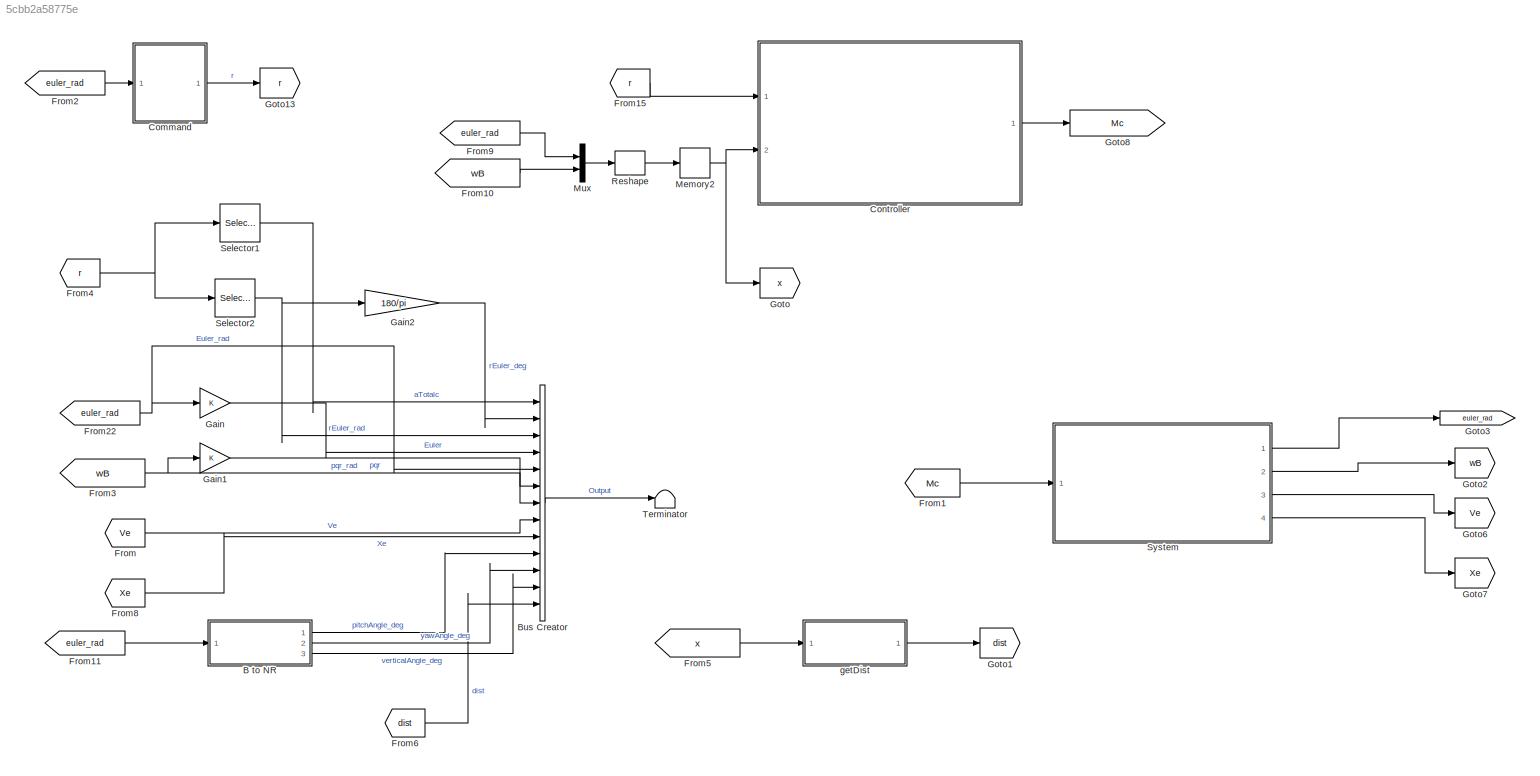
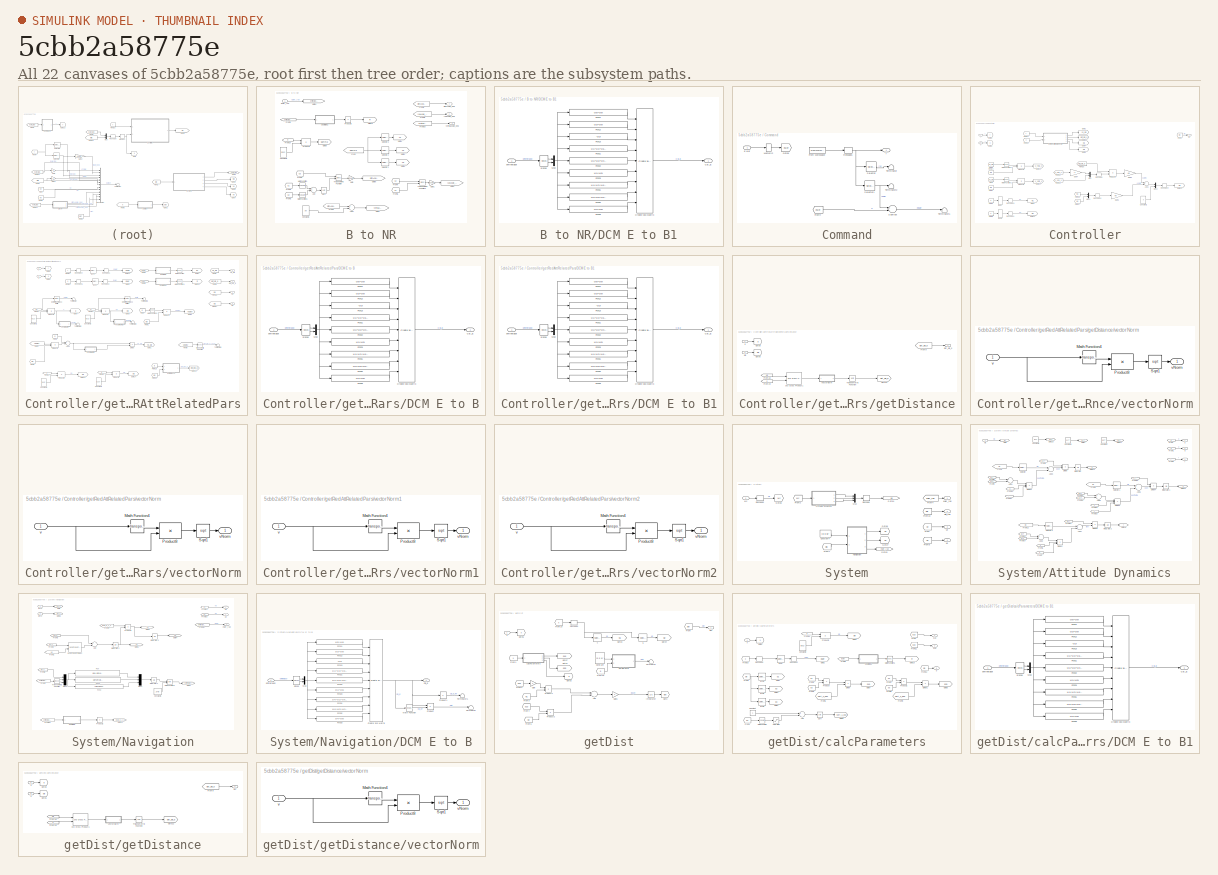
[diagram: thumbnail index - all 22 canvases of the model, root first then tree order]
MODEL slx_5cbb2a58775e
KIND model
BLOCK [SubSystem] B to NR
  Ports = [1, 3]
  RequestExecContextInheritance = off
  TreatAsAtomicUnit = on
BLOCK [Sum] B to NR/Add
  InputSameDT = off
  OutDataTypeStr = Inherit: Inherit via internal rule
  Ports = [2, 1]
  SaturateOnIntegerOverflow = off
BLOCK [Sum] B to NR/Add1
  InputSameDT = off
  Inputs = +-
  OutDataTypeStr = Inherit: Inherit via internal rule
  Ports = [2, 1]
  SaturateOnIntegerOverflow = off
BLOCK [Constant] B to NR/Constant1
  Value = 90
  VectorParams1D = off
BLOCK [Constant] B to NR/Constant2
  Value = [0 0 1]'
  VectorParams1D = off
BLOCK [SubSystem] B to NR/DCM E to B1
  Ports = [1, 1]
  RequestExecContextInheritance = off
BLOCK [Outport] B to NR/DCM E to B1/CB_E
  IconDisplay = Port number
BLOCK [Reference] B to NR/DCM E to B1/Create 3x3 Matrix  REF=aerolibutil/Create 3x3 Matrix
  Ports = [9, 1]
  SourceBlock = aerolibutil/Create 3x3 Matrix
  SourceType = Create 3x3 Matrix
BLOCK [Fcn] B to NR/DCM E to B1/Fcn11
  Expr = u(5)*u(6)
BLOCK [Fcn] B to NR/DCM E to B1/Fcn12
  Expr = u(3)*u(5)
BLOCK [Fcn] B to NR/DCM E to B1/Fcn13
  Expr = -u(2)
BLOCK [Fcn] B to NR/DCM E to B1/Fcn21
  Expr = u(1)*u(2)*u(6)-u(4)*u(3)
BLOCK [Fcn] B to NR/DCM E to B1/Fcn22
  Expr = u(1)*u(2)*u(3)+u(4)*u(6)
BLOCK [Fcn] B to NR/DCM E to B1/Fcn23
  Expr = u(1)*u(5)
BLOCK [Fcn] B to NR/DCM E to B1/Fcn31
  Expr = u(4)*u(2)*u(6)+u(1)*u(3)
BLOCK [Fcn] B to NR/DCM E to B1/Fcn32
  Expr = u(4)*u(2)*u(3)-u(1)*u(6)
BLOCK [Fcn] B to NR/DCM E to B1/Fcn33
  Expr = u(4)*u(5)
BLOCK [Mux] B to NR/DCM E to B1/Mux
  DisplayOption = bar
  Inputs = 2
  Ports = [2, 1]
BLOCK [Inport] B to NR/DCM E to B1/phithetapsi
  IconDisplay = Port number
BLOCK [Trigonometry] B to NR/DCM E to B1/sincos
  Operator = sincos
  Ports = [1, 2]
BLOCK [Inport] B to NR/Euler_rad
  IconDisplay = Port number
BLOCK [From] B to NR/From
  GotoTag = Gamma
BLOCK [From] B to NR/From1
  GotoTag = u3
BLOCK [From] B to NR/From10
  GotoTag = verticalAngle_deg
BLOCK [From] B to NR/From16
  GotoTag = R
BLOCK [From] B to NR/From2
  GotoTag = u1
BLOCK [From] B to NR/From3
  GotoTag = u2
BLOCK [From] B to NR/From4
  GotoTag = pitchAngle_deg
BLOCK [From] B to NR/From5
  GotoTag = phithetapsi
BLOCK [From] B to NR/From6
  GotoTag = u1
BLOCK [From] B to NR/From7
  GotoTag = u2
BLOCK [From] B to NR/From8
  GotoTag = pitchAngle_deg
BLOCK [From] B to NR/From9
  GotoTag = yawAngle_deg
BLOCK [Gain] B to NR/Gain
  Gain = 180/pi
  OutDataTypeStr = Inherit: Inherit via internal rule
  ParamDataTypeStr = Inherit: Inherit via internal rule
  SaturateOnIntegerOverflow = off
BLOCK [Gain] B to NR/Gain1
  Gain = 180/pi
  OutDataTypeStr = Inherit: Inherit via internal rule
  ParamDataTypeStr = Inherit: Inherit via internal rule
  SaturateOnIntegerOverflow = off
BLOCK [Goto] B to NR/Goto1
  GotoTag = u1
BLOCK [Goto] B to NR/Goto10
  GotoTag = R
BLOCK [Goto] B to NR/Goto2
  GotoTag = u2
BLOCK [Goto] B to NR/Goto3
  GotoTag = phithetapsi
BLOCK [Goto] B to NR/Goto4
  GotoTag = u3
BLOCK [Goto] B to NR/Goto5
  GotoTag = pitchAngle_deg
BLOCK [Goto] B to NR/Goto6
  GotoTag = yawAngle_deg
BLOCK [Goto] B to NR/Goto7
  GotoTag = verticalAngle_deg
BLOCK [Goto] B to NR/Goto9
  GotoTag = Gamma
BLOCK [Math] B to NR/Math Function
  Operator = square
  Ports = [1, 1]
BLOCK [Math] B to NR/Math Function1
  Operator = square
  Ports = [1, 1]
BLOCK [Product] B to NR/Product4
  InputSameDT = off
  Multiplication = Matrix(*)
  OutDataTypeStr = Inherit: Inherit via internal rule
  Ports = [2, 1]
  SaturateOnIntegerOverflow = off
BLOCK [Product] B to NR/Product5
  InputSameDT = off
  Inputs = /
  Multiplication = Matrix(*)
  OutDataTypeStr = Inherit: Inherit via internal rule
  Ports = [1, 1]
  SaturateOnIntegerOverflow = off
BLOCK [Selector] B to NR/Selector1
  Indices = 3
  InputPortWidth = 3
  Ports = [1, 1]
BLOCK [Selector] B to NR/Selector2
  Indices = 2
  InputPortWidth = 3
  Ports = [1, 1]
BLOCK [Selector] B to NR/Selector3
  InputPortWidth = 3
  Ports = [1, 1]
BLOCK [Sqrt] B to NR/Sqrt
BLOCK [Trigonometry] B to NR/Trigonometric Function
  Operator = atan2
  Ports = [2, 1]
BLOCK [Trigonometry] B to NR/Trigonometric Function1
  Operator = atan2
  Ports = [2, 1]
BLOCK [Outport] B to NR/pitchAngle_deg
  IconDisplay = Port number
BLOCK [Outport] B to NR/verticalAngle_deg
  IconDisplay = Port number
  Port = 3
BLOCK [Outport] B to NR/yawAngle_deg
  IconDisplay = Port number
  Port = 2
BLOCK [BusCreator] Bus Creator
  DisplayOption = bar
  Inputs = 13
  Ports = [13, 1]
BLOCK [SubSystem] Command
  Ports = [1, 1]
  RequestExecContextInheritance = off
  SystemSampleTime = dtFc
  TreatAsAtomicUnit = on
BLOCK [Inport] Command/Euler
  IconDisplay = Port number
BLOCK [FromWorkspace] Command/From Workspace
  Interpolate = off
  OutputAfterFinalValue = Setting to zero
  VariableName = r
BLOCK [From] Command/From4
  GotoTag = euler
BLOCK [Goto] Command/Goto5
  GotoTag = euler
BLOCK [Memory] Command/Memory2
  InheritSampleTime = on
  LinearizeAsDelay = on
  LinearizeMemory = on
  X0 = euler0
BLOCK [Reshape] Command/Reshape1
  OutputDimensionality = Column vector (2-D)
  Ports = [1, 1]
BLOCK [Selector] Command/Selector
  IndexOptions = Index vector (dialog),Index vector (dialog)
  Indices = 1,1
  InputPortWidth = 2
  NumberOfDimensions = 2
  OutputSizes = 1,1
  Ports = [1, 1]
BLOCK [Selector] Command/Selector1
  IndexOptions = Index vector (dialog),Index vector (dialog)
  Indices = [2 3 4],1
  InputPortWidth = 3
  NumberOfDimensions = 2
  OutputSizes = 1,1
  Ports = [1, 1]
BLOCK [Sum] Command/Subtract
  InputSameDT = off
  Inputs = +-
  OutDataTypeStr = Inherit: Inherit via internal rule
  Ports = [2, 1]
  SaturateOnIntegerOverflow = off
BLOCK [Terminator] Command/Terminator
BLOCK [Terminator] Command/Terminator1
BLOCK [Terminator] Command/Terminator2
BLOCK [Outport] Command/r
  IconDisplay = Port number
  InitialOutput = 0
BLOCK [SubSystem] Controller
  Ports = [2, 1]
  RequestExecContextInheritance = off
  SystemSampleTime = dtFc
  TreatAsAtomicUnit = on
BLOCK [Sum] Controller/Add1
  InputSameDT = off
  Inputs = +-
  OutDataTypeStr = Inherit: Inherit via internal rule
  Ports = [2, 1]
  SaturateOnIntegerOverflow = off
BLOCK [Constant] Controller/Constant1
  Value = 0
  VectorParams1D = off
BLOCK [From] Controller/From
  GotoTag = Yq_pi0
BLOCK [From] Controller/From1
  GotoTag = Mc
BLOCK [From] Controller/From10
  GotoTag = x
BLOCK [From] Controller/From11
  GotoTag = r
BLOCK [From] Controller/From12
  GotoTag = V_Ypi2_V
BLOCK [From] Controller/From13
  GotoTag = V_Ypi1_V
BLOCK [From] Controller/From14
  GotoTag = pi1
BLOCK [From] Controller/From15
  GotoTag = dist_pi0_q
BLOCK [From] Controller/From16
  GotoTag = w1
BLOCK [From] Controller/From17
  GotoTag = w2
BLOCK [From] Controller/From2
  GotoTag = x
BLOCK [From] Controller/From7
  GotoTag = pi2
BLOCK [From] Controller/From8
  GotoTag = x
BLOCK [From] Controller/From9
  GotoTag = Yq_pi0
BLOCK [Gain] Controller/Gain4
  Gain = -1
  Multiplication = Matrix(K*u)
  OutDataTypeStr = Inherit: Inherit via internal rule
  ParamDataTypeStr = Inherit: Inherit via internal rule
  SaturateOnIntegerOverflow = off
BLOCK [Gain] Controller/Gain5
  Gain = Kp
  OutDataTypeStr = Inherit: Inherit via internal rule
  ParamDataTypeStr = Inherit: Inherit via internal rule
  SaturateOnIntegerOverflow = off
BLOCK [Gain] Controller/Gain6
  Gain = Kv
  OutDataTypeStr = Inherit: Inherit via internal rule
  ParamDataTypeStr = Inherit: Inherit via internal rule
  SaturateOnIntegerOverflow = off
BLOCK [Goto] Controller/Goto10
  GotoTag = V_Ypi1_V
BLOCK [Goto] Controller/Goto11
  GotoTag = w2
BLOCK [Goto] Controller/Goto12
  GotoTag = Mc
BLOCK [Goto] Controller/Goto14
  GotoTag = V_Ypi2_V
BLOCK [Goto] Controller/Goto2
  GotoTag = Yq_pi0
BLOCK [Goto] Controller/Goto3
  GotoTag = dist_pi0_q
BLOCK [Goto] Controller/Goto4
  GotoTag = pi1
BLOCK [Goto] Controller/Goto5
  GotoTag = x
BLOCK [Goto] Controller/Goto7
  GotoTag = w1
BLOCK [Goto] Controller/Goto8
  GotoTag = r
BLOCK [Goto] Controller/Goto9
  GotoTag = pi2
BLOCK [Math] Controller/Math Function2
  Operator = transpose
  Ports = [1, 1]
BLOCK [Math] Controller/Math Function3
  Operator = transpose
  Ports = [1, 1]
BLOCK [Outport] Controller/Mc
  IconDisplay = Port number
BLOCK [Mux] Controller/Mux
  DisplayOption = bar
  Inputs = 2
  Ports = [2, 1]
BLOCK [Mux] Controller/Mux1
  DisplayOption = bar
  Inputs = 2
  Ports = [2, 1]
BLOCK [Mux] Controller/Mux2
  DisplayOption = bar
  Inputs = 2
  Ports = [2, 1]
BLOCK [Product] Controller/Product2
  InputSameDT = off
  Multiplication = Matrix(*)
  OutDataTypeStr = Inherit: Inherit via internal rule
  Ports = [2, 1]
  SaturateOnIntegerOverflow = off
BLOCK [Product] Controller/Product3
  InputSameDT = off
  Multiplication = Matrix(*)
  OutDataTypeStr = Inherit: Inherit via internal rule
  Ports = [2, 1]
  SaturateOnIntegerOverflow = off
BLOCK [Product] Controller/Product4
  InputSameDT = off
  OutDataTypeStr = Inherit: Inherit via internal rule
  Ports = [2, 1]
  SaturateOnIntegerOverflow = off
BLOCK [Reshape] Controller/Reshape
  OutputDimensionality = Column vector (2-D)
  Ports = [1, 1]
BLOCK [Reshape] Controller/Reshape1
  OutputDimensionality = Column vector (2-D)
  Ports = [1, 1]
BLOCK [Reshape] Controller/Reshape2
  OutputDimensionality = Column vector (2-D)
  Ports = [1, 1]
BLOCK [Reshape] Controller/Reshape3
  OutputDimensionality = Column vector (2-D)
  Ports = [1, 1]
BLOCK [Reshape] Controller/Reshape4
  OutputDimensionality = Column vector (2-D)
  Ports = [1, 1]
BLOCK [Selector] Controller/[4 5 6]
  Indices = 4
  InputPortWidth = 6
  Ports = [1, 1]
BLOCK [Selector] Controller/[4 5 6]1
  Indices = 5
  InputPortWidth = 6
  Ports = [1, 1]
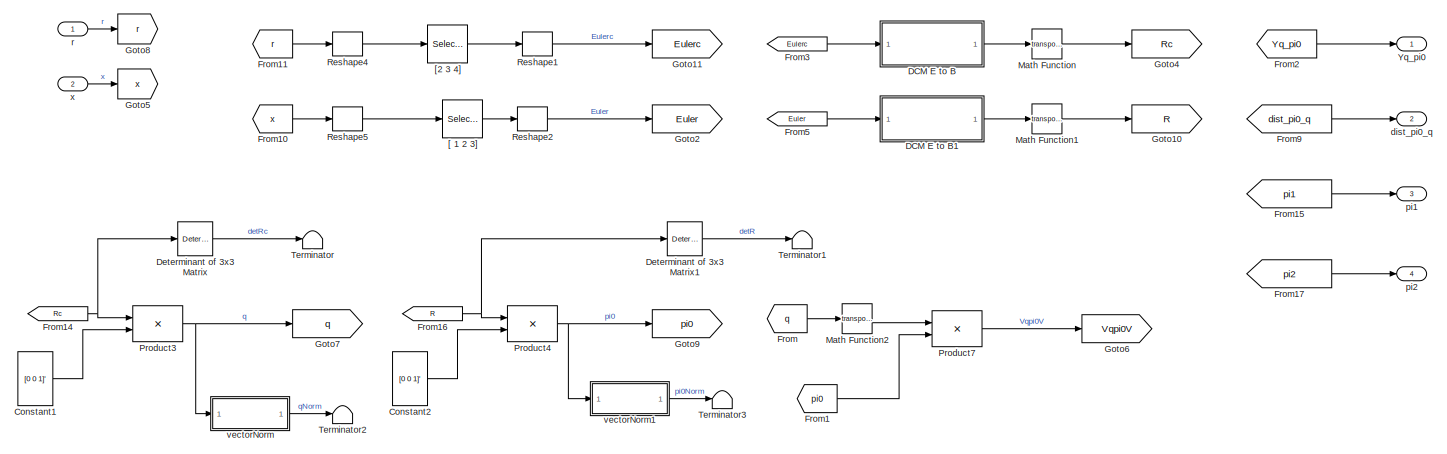
[diagram: Controller/getRedAttRelatedPars - part 1/2, full width, top band]
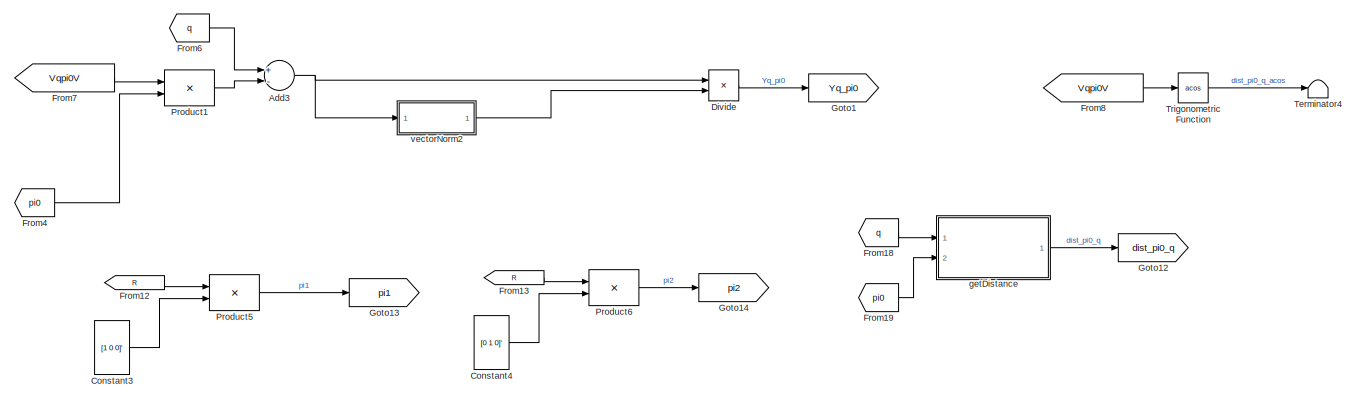
[diagram: Controller/getRedAttRelatedPars - part 2/2, full width, bottom band]
BLOCK [SubSystem] Controller/getRedAttRelatedPars
  Ports = [2, 4]
  RequestExecContextInheritance = off
BLOCK [Sum] Controller/getRedAttRelatedPars/Add3
  InputSameDT = off
  Inputs = +-
  OutDataTypeStr = Inherit: Inherit via internal rule
  Ports = [2, 1]
  SaturateOnIntegerOverflow = off
BLOCK [Constant] Controller/getRedAttRelatedPars/Constant1
  Value = [0 0 1]'
  VectorParams1D = off
BLOCK [Constant] Controller/getRedAttRelatedPars/Constant2
  Value = [0 0 1]'
  VectorParams1D = off
BLOCK [Constant] Controller/getRedAttRelatedPars/Constant3
  Value = [1 0 0]'
  VectorParams1D = off
BLOCK [Constant] Controller/getRedAttRelatedPars/Constant4
  Value = [0 1 0]'
  VectorParams1D = off
BLOCK [SubSystem] Controller/getRedAttRelatedPars/DCM E to B
  Ports = [1, 1]
  RequestExecContextInheritance = off
BLOCK [Outport] Controller/getRedAttRelatedPars/DCM E to B/CB_E
  IconDisplay = Port number
BLOCK [Reference] Controller/getRedAttRelatedPars/DCM E to B/Create 3x3 Matrix  REF=aerolibutil/Create 3x3 Matrix
  Ports = [9, 1]
  SourceBlock = aerolibutil/Create 3x3 Matrix
  SourceType = Create 3x3 Matrix
BLOCK [Fcn] Controller/getRedAttRelatedPars/DCM E to B/Fcn11
  Expr = u(5)*u(6)
BLOCK [Fcn] Controller/getRedAttRelatedPars/DCM E to B/Fcn12
  Expr = u(3)*u(5)
BLOCK [Fcn] Controller/getRedAttRelatedPars/DCM E to B/Fcn13
  Expr = -u(2)
BLOCK [Fcn] Controller/getRedAttRelatedPars/DCM E to B/Fcn21
  Expr = u(1)*u(2)*u(6)-u(4)*u(3)
BLOCK [Fcn] Controller/getRedAttRelatedPars/DCM E to B/Fcn22
  Expr = u(1)*u(2)*u(3)+u(4)*u(6)
BLOCK [Fcn] Controller/getRedAttRelatedPars/DCM E to B/Fcn23
  Expr = u(1)*u(5)
BLOCK [Fcn] Controller/getRedAttRelatedPars/DCM E to B/Fcn31
  Expr = u(4)*u(2)*u(6)+u(1)*u(3)
BLOCK [Fcn] Controller/getRedAttRelatedPars/DCM E to B/Fcn32
  Expr = u(4)*u(2)*u(3)-u(1)*u(6)
BLOCK [Fcn] Controller/getRedAttRelatedPars/DCM E to B/Fcn33
  Expr = u(4)*u(5)
BLOCK [Mux] Controller/getRedAttRelatedPars/DCM E to B/Mux
  DisplayOption = bar
  Inputs = 2
  Ports = [2, 1]
BLOCK [Inport] Controller/getRedAttRelatedPars/DCM E to B/phithetapsi
  IconDisplay = Port number
BLOCK [Trigonometry] Controller/getRedAttRelatedPars/DCM E to B/sincos
  Operator = sincos
  Ports = [1, 2]
BLOCK [SubSystem] Controller/getRedAttRelatedPars/DCM E to B1
  Ports = [1, 1]
  RequestExecContextInheritance = off
BLOCK [Outport] Controller/getRedAttRelatedPars/DCM E to B1/CB_E
  IconDisplay = Port number
BLOCK [Reference] Controller/getRedAttRelatedPars/DCM E to B1/Create 3x3 Matrix  REF=aerolibutil/Create 3x3 Matrix
  Ports = [9, 1]
  SourceBlock = aerolibutil/Create 3x3 Matrix
  SourceType = Create 3x3 Matrix
BLOCK [Fcn] Controller/getRedAttRelatedPars/DCM E to B1/Fcn11
  Expr = u(5)*u(6)
BLOCK [Fcn] Controller/getRedAttRelatedPars/DCM E to B1/Fcn12
  Expr = u(3)*u(5)
BLOCK [Fcn] Controller/getRedAttRelatedPars/DCM E to B1/Fcn13
  Expr = -u(2)
BLOCK [Fcn] Controller/getRedAttRelatedPars/DCM E to B1/Fcn21
  Expr = u(1)*u(2)*u(6)-u(4)*u(3)
BLOCK [Fcn] Controller/getRedAttRelatedPars/DCM E to B1/Fcn22
  Expr = u(1)*u(2)*u(3)+u(4)*u(6)
BLOCK [Fcn] Controller/getRedAttRelatedPars/DCM E to B1/Fcn23
  Expr = u(1)*u(5)
BLOCK [Fcn] Controller/getRedAttRelatedPars/DCM E to B1/Fcn31
  Expr = u(4)*u(2)*u(6)+u(1)*u(3)
BLOCK [Fcn] Controller/getRedAttRelatedPars/DCM E to B1/Fcn32
  Expr = u(4)*u(2)*u(3)-u(1)*u(6)
BLOCK [Fcn] Controller/getRedAttRelatedPars/DCM E to B1/Fcn33
  Expr = u(4)*u(5)
BLOCK [Mux] Controller/getRedAttRelatedPars/DCM E to B1/Mux
  DisplayOption = bar
  Inputs = 2
  Ports = [2, 1]
BLOCK [Inport] Controller/getRedAttRelatedPars/DCM E to B1/phithetapsi
  IconDisplay = Port number
BLOCK [Trigonometry] Controller/getRedAttRelatedPars/DCM E to B1/sincos
  Operator = sincos
  Ports = [1, 2]
BLOCK [Reference] Controller/getRedAttRelatedPars/Determinant of 3x3 Matrix  REF=aerolibutil/Determinant of
3x3 Matrix
  Ports = [1, 1]
  SourceBlock = aerolibutil/Determinant of\n3x3 Matrix
  SourceType = Determinant of 3x3 Matrix
BLOCK [Reference] Controller/getRedAttRelatedPars/Determinant of 3x3 Matrix1  REF=aerolibutil/Determinant of
3x3 Matrix
  Ports = [1, 1]
  SourceBlock = aerolibutil/Determinant of\n3x3 Matrix
  SourceType = Determinant of 3x3 Matrix
BLOCK [Product] Controller/getRedAttRelatedPars/Divide
  InputSameDT = off
  Inputs = */
  OutDataTypeStr = Inherit: Inherit via internal rule
  Ports = [2, 1]
  RndMeth = Floor
  SaturateOnIntegerOverflow = off
BLOCK [From] Controller/getRedAttRelatedPars/From
  GotoTag = q
BLOCK [From] Controller/getRedAttRelatedPars/From1
  GotoTag = pi0
BLOCK [From] Controller/getRedAttRelatedPars/From10
  GotoTag = x
BLOCK [From] Controller/getRedAttRelatedPars/From11
  GotoTag = r
BLOCK [From] Controller/getRedAttRelatedPars/From12
  GotoTag = R
BLOCK [From] Controller/getRedAttRelatedPars/From13
  GotoTag = R
BLOCK [From] Controller/getRedAttRelatedPars/From14
  GotoTag = Rc
BLOCK [From] Controller/getRedAttRelatedPars/From15
  GotoTag = pi1
BLOCK [From] Controller/getRedAttRelatedPars/From16
  GotoTag = R
BLOCK [From] Controller/getRedAttRelatedPars/From17
  GotoTag = pi2
BLOCK [From] Controller/getRedAttRelatedPars/From18
  GotoTag = q
BLOCK [From] Controller/getRedAttRelatedPars/From19
  GotoTag = pi0
BLOCK [From] Controller/getRedAttRelatedPars/From2
  GotoTag = Yq_pi0
BLOCK [From] Controller/getRedAttRelatedPars/From3
  GotoTag = Eulerc
BLOCK [From] Controller/getRedAttRelatedPars/From4
  GotoTag = pi0
BLOCK [From] Controller/getRedAttRelatedPars/From5
  GotoTag = Euler
BLOCK [From] Controller/getRedAttRelatedPars/From6
  GotoTag = q
BLOCK [From] Controller/getRedAttRelatedPars/From7
  GotoTag = Vqpi0V
BLOCK [From] Controller/getRedAttRelatedPars/From8
  GotoTag = Vqpi0V
BLOCK [From] Controller/getRedAttRelatedPars/From9
  GotoTag = dist_pi0_q
BLOCK [Goto] Controller/getRedAttRelatedPars/Goto1
  GotoTag = Yq_pi0
BLOCK [Goto] Controller/getRedAttRelatedPars/Goto10
  GotoTag = R
BLOCK [Goto] Controller/getRedAttRelatedPars/Goto11
  GotoTag = Eulerc
BLOCK [Goto] Controller/getRedAttRelatedPars/Goto12
  GotoTag = dist_pi0_q
BLOCK [Goto] Controller/getRedAttRelatedPars/Goto13
  GotoTag = pi1
BLOCK [Goto] Controller/getRedAttRelatedPars/Goto14
  GotoTag = pi2
BLOCK [Goto] Controller/getRedAttRelatedPars/Goto2
  GotoTag = Euler
BLOCK [Goto] Controller/getRedAttRelatedPars/Goto4
  GotoTag = Rc
BLOCK [Goto] Controller/getRedAttRelatedPars/Goto5
  GotoTag = x
BLOCK [Goto] Controller/getRedAttRelatedPars/Goto6
  GotoTag = Vqpi0V
BLOCK [Goto] Controller/getRedAttRelatedPars/Goto7
  GotoTag = q
BLOCK [Goto] Controller/getRedAttRelatedPars/Goto8
  GotoTag = r
BLOCK [Goto] Controller/getRedAttRelatedPars/Goto9
  GotoTag = pi0
BLOCK [Math] Controller/getRedAttRelatedPars/Math Function
  Operator = transpose
  Ports = [1, 1]
BLOCK [Math] Controller/getRedAttRelatedPars/Math Function1
  Operator = transpose
  Ports = [1, 1]
BLOCK [Math] Controller/getRedAttRelatedPars/Math Function2
  Operator = transpose
  Ports = [1, 1]
BLOCK [Product] Controller/getRedAttRelatedPars/Product1
  InputSameDT = off
  OutDataTypeStr = Inherit: Inherit via internal rule
  Ports = [2, 1]
  SaturateOnIntegerOverflow = off
BLOCK [Product] Controller/getRedAttRelatedPars/Product3
  InputSameDT = off
  Multiplication = Matrix(*)
  OutDataTypeStr = Inherit: Inherit via internal rule
  Ports = [2, 1]
  SaturateOnIntegerOverflow = off
BLOCK [Product] Controller/getRedAttRelatedPars/Product4
  InputSameDT = off
  Multiplication = Matrix(*)
  OutDataTypeStr = Inherit: Inherit via internal rule
  Ports = [2, 1]
  SaturateOnIntegerOverflow = off
BLOCK [Product] Controller/getRedAttRelatedPars/Product5
  InputSameDT = off
  Multiplication = Matrix(*)
  OutDataTypeStr = Inherit: Inherit via internal rule
  Ports = [2, 1]
  SaturateOnIntegerOverflow = off
BLOCK [Product] Controller/getRedAttRelatedPars/Product6
  InputSameDT = off
  Multiplication = Matrix(*)
  OutDataTypeStr = Inherit: Inherit via internal rule
  Ports = [2, 1]
  SaturateOnIntegerOverflow = off
BLOCK [Product] Controller/getRedAttRelatedPars/Product7
  InputSameDT = off
  Multiplication = Matrix(*)
  OutDataTypeStr = Inherit: Inherit via internal rule
  Ports = [2, 1]
  SaturateOnIntegerOverflow = off
BLOCK [Reshape] Controller/getRedAttRelatedPars/Reshape1
  OutputDimensionality = Column vector (2-D)
  Ports = [1, 1]
BLOCK [Reshape] Controller/getRedAttRelatedPars/Reshape2
  OutputDimensionality = Column vector (2-D)
  Ports = [1, 1]
BLOCK [Reshape] Controller/getRedAttRelatedPars/Reshape4
  OutputDimensionality = Column vector (2-D)
  Ports = [1, 1]
BLOCK [Reshape] Controller/getRedAttRelatedPars/Reshape5
  OutputDimensionality = Column vector (2-D)
  Ports = [1, 1]
BLOCK [Terminator] Controller/getRedAttRelatedPars/Terminator
BLOCK [Terminator] Controller/getRedAttRelatedPars/Terminator1
BLOCK [Terminator] Controller/getRedAttRelatedPars/Terminator2
BLOCK [Terminator] Controller/getRedAttRelatedPars/Terminator3
BLOCK [Terminator] Controller/getRedAttRelatedPars/Terminator4
BLOCK [Trigonometry] Controller/getRedAttRelatedPars/Trigonometric Function
  Operator = acos
  Ports = [1, 1]
BLOCK [Outport] Controller/getRedAttRelatedPars/Yq_pi0
  IconDisplay = Port number
BLOCK [Selector] Controller/getRedAttRelatedPars/[ 1 2 3]
  IndexOptions = Index vector (dialog),Index vector (dialog)
  Indices = [1 2 3],1
  InputPortWidth = 3
  NumberOfDimensions = 2
  OutputSizes = 1,1
  Ports = [1, 1]
BLOCK [Selector] Controller/getRedAttRelatedPars/[2 3 4]
  IndexOptions = Index vector (dialog),Index vector (dialog)
  Indices = [2 3 4],1
  InputPortWidth = 3
  NumberOfDimensions = 2
  OutputSizes = 1,1
  Ports = [1, 1]
BLOCK [Outport] Controller/getRedAttRelatedPars/dist_pi0_q
  IconDisplay = Port number
  Port = 2
BLOCK [SubSystem] Controller/getRedAttRelatedPars/getDistance
  Ports = [2, 1]
  RequestExecContextInheritance = off
BLOCK [Reference] Controller/getRedAttRelatedPars/getDistance/3x3 Cross Product1  REF=aerolibutil/3x3 Cross Product
  Ports = [2, 1]
  SourceBlock = aerolibutil/3x3 Cross Product
  SourceType = CrossProduct
BLOCK [From] Controller/getRedAttRelatedPars/getDistance/From18
  GotoTag = pi0
BLOCK [From] Controller/getRedAttRelatedPars/getDistance/From19
  GotoTag = q
BLOCK [From] Controller/getRedAttRelatedPars/getDistance/From9
  GotoTag = dist_pi0_q
BLOCK [Goto] Controller/getRedAttRelatedPars/getDistance/Goto12
  GotoTag = dist_pi0_q
BLOCK [Goto] Controller/getRedAttRelatedPars/getDistance/Goto5
  GotoTag = pi0
BLOCK [Goto] Controller/getRedAttRelatedPars/getDistance/Goto8
  GotoTag = q
BLOCK [Trigonometry] Controller/getRedAttRelatedPars/getDistance/Trigonometric Function
  Operator = asin
  Ports = [1, 1]
BLOCK [Outport] Controller/getRedAttRelatedPars/getDistance/dist_pi0_q
  IconDisplay = Port number
BLOCK [Inport] Controller/getRedAttRelatedPars/getDistance/pi0
  IconDisplay = Port number
  Port = 2
BLOCK [Inport] Controller/getRedAttRelatedPars/getDistance/q
  IconDisplay = Port number
BLOCK [SubSystem] Controller/getRedAttRelatedPars/getDistance/vectorNorm
  Ports = [1, 1]
  RequestExecContextInheritance = off
BLOCK [Math] Controller/getRedAttRelatedPars/getDistance/vectorNorm/Math Function4
  Operator = transpose
  Ports = [1, 1]
BLOCK [Product] Controller/getRedAttRelatedPars/getDistance/vectorNorm/Product8
  InputSameDT = off
  Multiplication = Matrix(*)
  OutDataTypeStr = Inherit: Inherit via internal rule
  Ports = [2, 1]
  SaturateOnIntegerOverflow = off
BLOCK [Sqrt] Controller/getRedAttRelatedPars/getDistance/vectorNorm/Sqrt1
BLOCK [Inport] Controller/getRedAttRelatedPars/getDistance/vectorNorm/v
  IconDisplay = Port number
BLOCK [Outport] Controller/getRedAttRelatedPars/getDistance/vectorNorm/vNorm
  IconDisplay = Port number
BLOCK [Outport] Controller/getRedAttRelatedPars/pi1
  IconDisplay = Port number
  Port = 3
BLOCK [Outport] Controller/getRedAttRelatedPars/pi2
  IconDisplay = Port number
  Port = 4
BLOCK [Inport] Controller/getRedAttRelatedPars/r
  IconDisplay = Port number
BLOCK [SubSystem] Controller/getRedAttRelatedPars/vectorNorm
  Ports = [1, 1]
  RequestExecContextInheritance = off
BLOCK [Math] Controller/getRedAttRelatedPars/vectorNorm/Math Function4
  Operator = transpose
  Ports = [1, 1]
BLOCK [Product] Controller/getRedAttRelatedPars/vectorNorm/Product8
  InputSameDT = off
  Multiplication = Matrix(*)
  OutDataTypeStr = Inherit: Inherit via internal rule
  Ports = [2, 1]
  SaturateOnIntegerOverflow = off
BLOCK [Sqrt] Controller/getRedAttRelatedPars/vectorNorm/Sqrt1
BLOCK [Inport] Controller/getRedAttRelatedPars/vectorNorm/v
  IconDisplay = Port number
BLOCK [Outport] Controller/getRedAttRelatedPars/vectorNorm/vNorm
  IconDisplay = Port number
BLOCK [SubSystem] Controller/getRedAttRelatedPars/vectorNorm1
  Ports = [1, 1]
  RequestExecContextInheritance = off
BLOCK [Math] Controller/getRedAttRelatedPars/vectorNorm1/Math Function4
  Operator = transpose
  Ports = [1, 1]
BLOCK [Product] Controller/getRedAttRelatedPars/vectorNorm1/Product8
  InputSameDT = off
  Multiplication = Matrix(*)
  OutDataTypeStr = Inherit: Inherit via internal rule
  Ports = [2, 1]
  SaturateOnIntegerOverflow = off
BLOCK [Sqrt] Controller/getRedAttRelatedPars/vectorNorm1/Sqrt1
BLOCK [Inport] Controller/getRedAttRelatedPars/vectorNorm1/v
  IconDisplay = Port number
BLOCK [Outport] Controller/getRedAttRelatedPars/vectorNorm1/vNorm
  IconDisplay = Port number
BLOCK [SubSystem] Controller/getRedAttRelatedPars/vectorNorm2
  Ports = [1, 1]
  RequestExecContextInheritance = off
BLOCK [Math] Controller/getRedAttRelatedPars/vectorNorm2/Math Function4
  Operator = transpose
  Ports = [1, 1]
BLOCK [Product] Controller/getRedAttRelatedPars/vectorNorm2/Product8
  InputSameDT = off
  Multiplication = Matrix(*)
  OutDataTypeStr = Inherit: Inherit via internal rule
  Ports = [2, 1]
  SaturateOnIntegerOverflow = off
BLOCK [Sqrt] Controller/getRedAttRelatedPars/vectorNorm2/Sqrt1
BLOCK [Inport] Controller/getRedAttRelatedPars/vectorNorm2/v
  IconDisplay = Port number
BLOCK [Outport] Controller/getRedAttRelatedPars/vectorNorm2/vNorm
  IconDisplay = Port number
BLOCK [Inport] Controller/getRedAttRelatedPars/x
  IconDisplay = Port number
  Port = 2
BLOCK [Inport] Controller/r
  IconDisplay = Port number
BLOCK [Inport] Controller/x
  IconDisplay = Port number
  Port = 2
BLOCK [From] From
  GotoTag = Ve
BLOCK [From] From1
  GotoTag = Mc
BLOCK [From] From10
  GotoTag = wB
BLOCK [From] From11
  GotoTag = euler_rad
BLOCK [From] From15
  GotoTag = r
BLOCK [From] From2
  GotoTag = euler_rad
BLOCK [From] From22
  GotoTag = euler_rad
BLOCK [From] From3
  GotoTag = wB
BLOCK [From] From4
  GotoTag = r
BLOCK [From] From5
  GotoTag = x
BLOCK [From] From6
  GotoTag = dist
BLOCK [From] From8
  GotoTag = Xe
BLOCK [From] From9
  GotoTag = euler_rad
BLOCK [Gain] Gain
  OutDataTypeStr = Inherit: Inherit via internal rule
  ParamDataTypeStr = Inherit: Inherit via internal rule
  SaturateOnIntegerOverflow = off
BLOCK [Gain] Gain1
  OutDataTypeStr = Inherit: Inherit via internal rule
  ParamDataTypeStr = Inherit: Inherit via internal rule
  SaturateOnIntegerOverflow = off
BLOCK [Gain] Gain2
  Gain = 180/pi
  OutDataTypeStr = Inherit: Inherit via internal rule
  ParamDataTypeStr = Inherit: Inherit via internal rule
  SaturateOnIntegerOverflow = off
BLOCK [Goto] Goto
  GotoTag = x
BLOCK [Goto] Goto1
  GotoTag = dist
BLOCK [Goto] Goto13
  GotoTag = r
BLOCK [Goto] Goto2
  GotoTag = wB
BLOCK [Goto] Goto3
  GotoTag = euler_rad
BLOCK [Goto] Goto6
  GotoTag = Ve
BLOCK [Goto] Goto7
  GotoTag = Xe
BLOCK [Goto] Goto8
  GotoTag = Mc
BLOCK [Memory] Memory2
  InheritSampleTime = on
  LinearizeAsDelay = on
  LinearizeMemory = on
  X0 = q0
BLOCK [Mux] Mux
  DisplayOption = bar
  Inputs = 2
  Ports = [2, 1]
BLOCK [Reshape] Reshape
  OutputDimensionality = Column vector (2-D)
  Ports = [1, 1]
BLOCK [Selector] Selector1
  IndexOptions = Index vector (dialog),Index vector (dialog)
  Indices = 1,1
  InputPortWidth = 2
  NumberOfDimensions = 2
  OutputSizes = 1,1
  Ports = [1, 1]
BLOCK [Selector] Selector2
  IndexOptions = Index vector (dialog),Index vector (dialog)
  Indices = [2 3 4],1
  InputPortWidth = 3
  NumberOfDimensions = 2
  OutputSizes = 1,1
  Ports = [1, 1]
BLOCK [SubSystem] System
  Ports = [1, 4]
  RequestExecContextInheritance = off
  TreatAsAtomicUnit = on
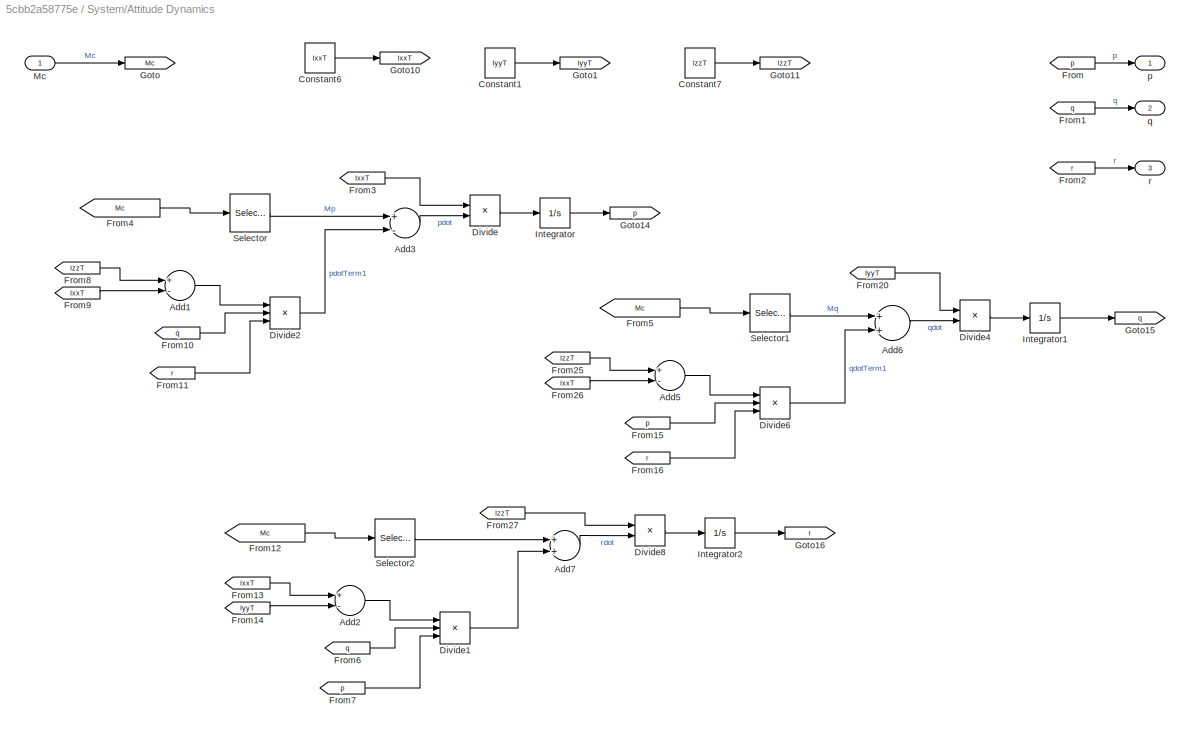
BLOCK [SubSystem] System/Attitude Dynamics
  Ports = [1, 3]
  RequestExecContextInheritance = off
BLOCK [Sum] System/Attitude Dynamics/Add1
  InputSameDT = off
  Inputs = +-
  OutDataTypeStr = Inherit: Inherit via internal rule
  Ports = [2, 1]
  SaturateOnIntegerOverflow = off
BLOCK [Sum] System/Attitude Dynamics/Add2
  InputSameDT = off
  Inputs = +-
  OutDataTypeStr = Inherit: Inherit via internal rule
  Ports = [2, 1]
  SaturateOnIntegerOverflow = off
BLOCK [Sum] System/Attitude Dynamics/Add3
  InputSameDT = off
  Inputs = +-
  OutDataTypeStr = Inherit: Inherit via internal rule
  Ports = [2, 1]
  SaturateOnIntegerOverflow = off
BLOCK [Sum] System/Attitude Dynamics/Add5
  InputSameDT = off
  Inputs = +-
  OutDataTypeStr = Inherit: Inherit via internal rule
  Ports = [2, 1]
  SaturateOnIntegerOverflow = off
BLOCK [Sum] System/Attitude Dynamics/Add6
  InputSameDT = off
  OutDataTypeStr = Inherit: Inherit via internal rule
  Ports = [2, 1]
  SaturateOnIntegerOverflow = off
BLOCK [Sum] System/Attitude Dynamics/Add7
  InputSameDT = off
  OutDataTypeStr = Inherit: Inherit via internal rule
  Ports = [2, 1]
  SaturateOnIntegerOverflow = off
BLOCK [Constant] System/Attitude Dynamics/Constant1
  Value = IyyT
  VectorParams1D = off
BLOCK [Constant] System/Attitude Dynamics/Constant6
  Value = IxxT
  VectorParams1D = off
BLOCK [Constant] System/Attitude Dynamics/Constant7
  Value = IzzT
  VectorParams1D = off
BLOCK [Product] System/Attitude Dynamics/Divide
  InputSameDT = off
  Inputs = /*
  OutDataTypeStr = Inherit: Inherit via internal rule
  Ports = [2, 1]
  RndMeth = Floor
  SaturateOnIntegerOverflow = off
BLOCK [Product] System/Attitude Dynamics/Divide1
  InputSameDT = off
  Inputs = ***
  OutDataTypeStr = Inherit: Inherit via internal rule
  Ports = [3, 1]
  RndMeth = Floor
  SaturateOnIntegerOverflow = off
BLOCK [Product] System/Attitude Dynamics/Divide2
  InputSameDT = off
  Inputs = ***
  OutDataTypeStr = Inherit: Inherit via internal rule
  Ports = [3, 1]
  RndMeth = Floor
  SaturateOnIntegerOverflow = off
BLOCK [Product] System/Attitude Dynamics/Divide4
  InputSameDT = off
  Inputs = /*
  OutDataTypeStr = Inherit: Inherit via internal rule
  Ports = [2, 1]
  RndMeth = Floor
  SaturateOnIntegerOverflow = off
BLOCK [Product] System/Attitude Dynamics/Divide6
  InputSameDT = off
  Inputs = ***
  OutDataTypeStr = Inherit: Inherit via internal rule
  Ports = [3, 1]
  RndMeth = Floor
  SaturateOnIntegerOverflow = off
BLOCK [Product] System/Attitude Dynamics/Divide8
  InputSameDT = off
  Inputs = /*
  OutDataTypeStr = Inherit: Inherit via internal rule
  Ports = [2, 1]
  RndMeth = Floor
  SaturateOnIntegerOverflow = off
BLOCK [From] System/Attitude Dynamics/From
  GotoTag = p
BLOCK [From] System/Attitude Dynamics/From1
  GotoTag = q
BLOCK [From] System/Attitude Dynamics/From10
  GotoTag = q
BLOCK [From] System/Attitude Dynamics/From11
  GotoTag = r
BLOCK [From] System/Attitude Dynamics/From12
  GotoTag = Mc
BLOCK [From] System/Attitude Dynamics/From13
  GotoTag = IxxT
BLOCK [From] System/Attitude Dynamics/From14
  GotoTag = IyyT
BLOCK [From] System/Attitude Dynamics/From15
  GotoTag = p
BLOCK [From] System/Attitude Dynamics/From16
  GotoTag = r
BLOCK [From] System/Attitude Dynamics/From2
  GotoTag = r
BLOCK [From] System/Attitude Dynamics/From20
  GotoTag = IyyT
BLOCK [From] System/Attitude Dynamics/From25
  GotoTag = IzzT
BLOCK [From] System/Attitude Dynamics/From26
  GotoTag = IxxT
BLOCK [From] System/Attitude Dynamics/From27
  GotoTag = IzzT
BLOCK [From] System/Attitude Dynamics/From3
  GotoTag = IxxT
BLOCK [From] System/Attitude Dynamics/From4
  GotoTag = Mc
BLOCK [From] System/Attitude Dynamics/From5
  GotoTag = Mc
BLOCK [From] System/Attitude Dynamics/From6
  GotoTag = q
BLOCK [From] System/Attitude Dynamics/From7
  GotoTag = p
BLOCK [From] System/Attitude Dynamics/From8
  GotoTag = IzzT
BLOCK [From] System/Attitude Dynamics/From9
  GotoTag = IxxT
BLOCK [Goto] System/Attitude Dynamics/Goto
  GotoTag = Mc
BLOCK [Goto] System/Attitude Dynamics/Goto1
  GotoTag = IyyT
BLOCK [Goto] System/Attitude Dynamics/Goto10
  GotoTag = IxxT
BLOCK [Goto] System/Attitude Dynamics/Goto11
  GotoTag = IzzT
BLOCK [Goto] System/Attitude Dynamics/Goto14
  GotoTag = p
BLOCK [Goto] System/Attitude Dynamics/Goto15
  GotoTag = q
BLOCK [Goto] System/Attitude Dynamics/Goto16
  GotoTag = r
BLOCK [Integrator] System/Attitude Dynamics/Integrator
  InitialCondition = pqr0(1)
  Ports = [1, 1]
BLOCK [Integrator] System/Attitude Dynamics/Integrator1
  InitialCondition = pqr0(2)
  Ports = [1, 1]
BLOCK [Integrator] System/Attitude Dynamics/Integrator2
  InitialCondition = pqr0(3)
  Ports = [1, 1]
BLOCK [Inport] System/Attitude Dynamics/Mc
  IconDisplay = Port number
BLOCK [Selector] System/Attitude Dynamics/Selector
  Indices = [1]
  InputPortWidth = 3
  Ports = [1, 1]
BLOCK [Selector] System/Attitude Dynamics/Selector1
  Indices = [2]
  InputPortWidth = 3
  Ports = [1, 1]
BLOCK [Selector] System/Attitude Dynamics/Selector2
  Indices = [3]
  InputPortWidth = 3
  Ports = [1, 1]
BLOCK [Outport] System/Attitude Dynamics/p
  IconDisplay = Port number
BLOCK [Outport] System/Attitude Dynamics/q
  IconDisplay = Port number
  Port = 2
BLOCK [Outport] System/Attitude Dynamics/r
  IconDisplay = Port number
  Port = 3
BLOCK [Constant] System/Constant4
  Value = [0 0 0]'
  VectorParams1D = off
BLOCK [From] System/From
  GotoTag = Ve
BLOCK [From] System/From1
  GotoTag = wB
BLOCK [From] System/From10
  GotoTag = wB
BLOCK [From] System/From2
  GotoTag = Mc
BLOCK [From] System/From4
  GotoTag = euler_rad
BLOCK [From] System/From8
  GotoTag = Xe
BLOCK [Goto] System/Goto3
  GotoTag = euler_rad
BLOCK [Goto] System/Goto4
  GotoTag = wB
BLOCK [Goto] System/Goto6
  GotoTag = Ve
BLOCK [Goto] System/Goto7
  GotoTag = Xe
BLOCK [Goto] System/Goto8
  GotoTag = Mc
BLOCK [Inport] System/Mc
  IconDisplay = Port number
BLOCK [Mux] System/Mux
  DisplayOption = bar
  Inputs = 3
  Ports = [3, 1]
BLOCK [SubSystem] System/Navigation
  Ports = [2, 3]
  RequestExecContextInheritance = off
BLOCK [Reference] System/Navigation/3x3 Cross Product  REF=aerolibutil/3x3 Cross Product
  Ports = [2, 1]
  SourceBlock = aerolibutil/3x3 Cross Product
  SourceType = CrossProduct
BLOCK [Sum] System/Navigation/Add
  InputSameDT = off
  Inputs = +-
  OutDataTypeStr = Inherit: Inherit via internal rule
  Ports = [2, 1]
  SaturateOnIntegerOverflow = off
BLOCK [Constant] System/Navigation/Constant5
  Value = 2*pi
BLOCK [SubSystem] System/Navigation/DCM E to B
  Ports = [1, 1]
  RequestExecContextInheritance = off
BLOCK [Outport] System/Navigation/DCM E to B/CB_E
  IconDisplay = Port number
BLOCK [Reference] System/Navigation/DCM E to B/Create 3x3 Matrix  REF=aerolibutil/Create 3x3 Matrix
  Ports = [9, 1]
  SourceBlock = aerolibutil/Create 3x3 Matrix
  SourceType = Create 3x3 Matrix
BLOCK [Fcn] System/Navigation/DCM E to B/Fcn11
  Expr = u(5)*u(6)
BLOCK [Fcn] System/Navigation/DCM E to B/Fcn12
  Expr = u(3)*u(5)
BLOCK [Fcn] System/Navigation/DCM E to B/Fcn13
  Expr = -u(2)
BLOCK [Fcn] System/Navigation/DCM E to B/Fcn21
  Expr = u(1)*u(2)*u(6)-u(4)*u(3)
BLOCK [Fcn] System/Navigation/DCM E to B/Fcn22
  Expr = u(1)*u(2)*u(3)+u(4)*u(6)
BLOCK [Fcn] System/Navigation/DCM E to B/Fcn23
  Expr = u(1)*u(5)
BLOCK [Fcn] System/Navigation/DCM E to B/Fcn31
  Expr = u(4)*u(2)*u(6)+u(1)*u(3)
BLOCK [Fcn] System/Navigation/DCM E to B/Fcn32
  Expr = u(4)*u(2)*u(3)-u(1)*u(6)
BLOCK [Fcn] System/Navigation/DCM E to B/Fcn33
  Expr = u(4)*u(5)
BLOCK [Math] System/Navigation/DCM E to B/Math Function
  Operator = transpose
  Ports = [1, 1]
BLOCK [Mux] System/Navigation/DCM E to B/Mux
  DisplayOption = bar
  Inputs = 2
  Ports = [2, 1]
BLOCK [Product] System/Navigation/DCM E to B/Product
  InputSameDT = off
  Multiplication = Matrix(*)
  OutDataTypeStr = Inherit: Inherit via internal rule
  Ports = [2, 1]
  SaturateOnIntegerOverflow = off
BLOCK [Product] System/Navigation/DCM E to B/Product1
  InputSameDT = off
  Inputs = /
  Multiplication = Matrix(*)
  OutDataTypeStr = Inherit: Inherit via internal rule
  Ports = [1, 1]
  SaturateOnIntegerOverflow = off
BLOCK [Terminator] System/Navigation/DCM E to B/Terminator
BLOCK [Terminator] System/Navigation/DCM E to B/Terminator1
BLOCK [Inport] System/Navigation/DCM E to B/phithetapsi
  IconDisplay = Port number
BLOCK [Trigonometry] System/Navigation/DCM E to B/sincos
  Operator = sincos
  Ports = [1, 2]
BLOCK [Fcn] System/Navigation/Fcn
  Expr = u[1]+(u[2]*u[4]+u[3]*u[7])*(u[5]/u[8])
BLOCK [Fcn] System/Navigation/Fcn1
  Expr = u[2]*u[7]-u[3]*u[4]
BLOCK [Fcn] System/Navigation/Fcn2
  Expr = (u[2]*u[4]+u[3]*u[7])/u[8]
BLOCK [From] System/Navigation/From1
  GotoTag = Vb
BLOCK [From] System/Navigation/From14
  GotoTag = Ve
BLOCK [From] System/Navigation/From15
  GotoTag = Xe
BLOCK [From] System/Navigation/From17
  GotoTag = phithetapsi
BLOCK [From] System/Navigation/From2
  GotoTag = wxyz
BLOCK [From] System/Navigation/From20
  GotoTag = phithetapsi
BLOCK [From] System/Navigation/From3
  GotoTag = axyz
BLOCK [From] System/Navigation/From4
  GotoTag = DCM_b_2_e
BLOCK [From] System/Navigation/From6
  GotoTag = wxyz
BLOCK [From] System/Navigation/From7
  GotoTag = phithetapsi
BLOCK [Goto] System/Navigation/Goto
  GotoTag = axyz
BLOCK [Goto] System/Navigation/Goto1
  GotoTag = Vb
BLOCK [Goto] System/Navigation/Goto14
  GotoTag = DCM_b_2_e
BLOCK [Goto] System/Navigation/Goto2
  GotoTag = phithetapsi
BLOCK [Goto] System/Navigation/Goto3
  GotoTag = Ve
BLOCK [Goto] System/Navigation/Goto4
  GotoTag = Xe
BLOCK [Goto] System/Navigation/Goto8
  GotoTag = wxyz
BLOCK [Integrator] System/Navigation/Integrator1
  InitialCondition = euler0
  Ports = [1, 1]
BLOCK [Integrator] System/Navigation/Integrator2
  InitialCondition = Vb0
  Ports = [1, 1]
BLOCK [Integrator] System/Navigation/Integrator3
  InitialCondition = Xe0
  Ports = [1, 1]
BLOCK [Math] System/Navigation/Math Function2
  Operator = rem
  Ports = [2, 1]
BLOCK [Mux] System/Navigation/Mux3
  DisplayOption = bar
  Inputs = 3
  Ports = [3, 1]
BLOCK [Mux] System/Navigation/Mux4
  DisplayOption = bar
  Inputs = 3
  Ports = [3, 1]
BLOCK [Product] System/Navigation/Product1
  InputSameDT = off
  Multiplication = Matrix(*)
  OutDataTypeStr = Inherit: Inherit via internal rule
  Ports = [2, 1]
  SaturateOnIntegerOverflow = off
BLOCK [Product] System/Navigation/Product2
  InputSameDT = off
  Inputs = /
  Multiplication = Matrix(*)
  OutDataTypeStr = Inherit: Inherit via internal rule
  Ports = [1, 1]
  SaturateOnIntegerOverflow = off
BLOCK [Trigonometry] System/Navigation/Trigonometric Function
  Operator = sincos
  Ports = [1, 2]
BLOCK [Outport] System/Navigation/Ve
  IconDisplay = Port number
BLOCK [Outport] System/Navigation/Xe
  IconDisplay = Port number
  Port = 2
BLOCK [Inport] System/Navigation/axyz
  IconDisplay = Port number
BLOCK [Outport] System/Navigation/euler_rad
  IconDisplay = Port number
  Port = 3
BLOCK [Inport] System/Navigation/wxyz
  IconDisplay = Port number
  Port = 2
BLOCK [Reshape] System/Reshape
  OutputDimensionality = Column vector (2-D)
  Ports = [1, 1]
BLOCK [Reshape] System/Reshape5
  OutputDimensionality = Column vector (2-D)
  Ports = [1, 1]
BLOCK [Outport] System/Ve
  IconDisplay = Port number
  Port = 3
BLOCK [Outport] System/Xe
  IconDisplay = Port number
  Port = 4
BLOCK [Outport] System/euler_rad
  IconDisplay = Port number
BLOCK [Outport] System/wB_rad
  IconDisplay = Port number
  Port = 2
BLOCK [Terminator] Terminator
BLOCK [SubSystem] getDist
  Ports = [1, 1]
  RequestExecContextInheritance = off
  TreatAsAtomicUnit = on
BLOCK [Selector] getDist/4
  IndexOptions = Index vector (dialog),Index vector (dialog)
  Indices = 4,1
  InputPortWidth = 3
  NumberOfDimensions = 2
  OutputSizes = 1,1
  Ports = [1, 1]
BLOCK [Selector] getDist/5
  IndexOptions = Index vector (dialog),Index vector (dialog)
  Indices = 5,1
  InputPortWidth = 3
  NumberOfDimensions = 2
  OutputSizes = 1,1
  Ports = [1, 1]
BLOCK [Sum] getDist/Add
  InputSameDT = off
  OutDataTypeStr = Inherit: Inherit via internal rule
  Ports = [2, 1]
  SaturateOnIntegerOverflow = off
BLOCK [Constant] getDist/Constant
  Value = [0 0 1]'
  VectorParams1D = off
BLOCK [From] getDist/From
  GotoTag = dist
BLOCK [From] getDist/From1
  GotoTag = x
BLOCK [From] getDist/From10
  GotoTag = x
BLOCK [From] getDist/From19
  GotoTag = p
BLOCK [From] getDist/From2
  GotoTag = p2p
BLOCK [From] getDist/From3
  GotoTag = w1
BLOCK [From] getDist/From4
  GotoTag = p1p
BLOCK [From] getDist/From5
  GotoTag = w2
BLOCK [Gain] getDist/Gain
  Gain = -1
  OutDataTypeStr = Inherit: Inherit via internal rule
  ParamDataTypeStr = Inherit: Inherit via internal rule
  SaturateOnIntegerOverflow = off
BLOCK [Gain] getDist/Gain1
  Gain = -1
  OutDataTypeStr = Inherit: Inherit via internal rule
  ParamDataTypeStr = Inherit: Inherit via internal rule
  SaturateOnIntegerOverflow = off
BLOCK [Goto] getDist/Goto
  GotoTag = dist
BLOCK [Goto] getDist/Goto1
  GotoTag = p2p
BLOCK [Goto] getDist/Goto2
  GotoTag = p
BLOCK [Goto] getDist/Goto3
  GotoTag = w1
BLOCK [Goto] getDist/Goto4
  GotoTag = w2
BLOCK [Goto] getDist/Goto5
  GotoTag = x
BLOCK [Goto] getDist/Goto7
  GotoTag = p1p
BLOCK [Integrator] getDist/Integrator
  Ports = [1, 1]
BLOCK [Product] getDist/Product1
  InputSameDT = off
  OutDataTypeStr = Inherit: Inherit via internal rule
  Ports = [2, 1]
  RndMeth = Floor
  SaturateOnIntegerOverflow = off
BLOCK [Product] getDist/Product2
  InputSameDT = off
  OutDataTypeStr = Inherit: Inherit via internal rule
  Ports = [2, 1]
  RndMeth = Floor
  SaturateOnIntegerOverflow = off
BLOCK [Reshape] getDist/Reshape5
  OutputDimensionality = Column vector (2-D)
  Ports = [1, 1]
BLOCK [Terminator] getDist/Terminator
BLOCK [SubSystem] getDist/calcParameters
  Ports = [1, 3]
  RequestExecContextInheritance = off
  TreatAsAtomicUnit = on
BLOCK [Sum] getDist/calcParameters/Add
  InputSameDT = off
  Inputs = +-
  OutDataTypeStr = Inherit: Inherit via internal rule
  Ports = [2, 1]
  SaturateOnIntegerOverflow = off
BLOCK [Constant] getDist/calcParameters/Constant
BLOCK [Constant] getDist/calcParameters/Constant2
  Value = [0 0 1]'
  VectorParams1D = off
BLOCK [SubSystem] getDist/calcParameters/DCM E to B1
  Ports = [1, 1]
  RequestExecContextInheritance = off
BLOCK [Outport] getDist/calcParameters/DCM E to B1/CB_E
  IconDisplay = Port number
BLOCK [Reference] getDist/calcParameters/DCM E to B1/Create 3x3 Matrix  REF=aerolibutil/Create 3x3 Matrix
  Ports = [9, 1]
  SourceBlock = aerolibutil/Create 3x3 Matrix
  SourceType = Create 3x3 Matrix
BLOCK [Fcn] getDist/calcParameters/DCM E to B1/Fcn11
  Expr = u(5)*u(6)
BLOCK [Fcn] getDist/calcParameters/DCM E to B1/Fcn12
  Expr = u(3)*u(5)
BLOCK [Fcn] getDist/calcParameters/DCM E to B1/Fcn13
  Expr = -u(2)
BLOCK [Fcn] getDist/calcParameters/DCM E to B1/Fcn21
  Expr = u(1)*u(2)*u(6)-u(4)*u(3)
BLOCK [Fcn] getDist/calcParameters/DCM E to B1/Fcn22
  Expr = u(1)*u(2)*u(3)+u(4)*u(6)
BLOCK [Fcn] getDist/calcParameters/DCM E to B1/Fcn23
  Expr = u(1)*u(5)
BLOCK [Fcn] getDist/calcParameters/DCM E to B1/Fcn31
  Expr = u(4)*u(2)*u(6)+u(1)*u(3)
BLOCK [Fcn] getDist/calcParameters/DCM E to B1/Fcn32
  Expr = u(4)*u(2)*u(3)-u(1)*u(6)
BLOCK [Fcn] getDist/calcParameters/DCM E to B1/Fcn33
  Expr = u(4)*u(5)
BLOCK [Mux] getDist/calcParameters/DCM E to B1/Mux
  DisplayOption = bar
  Inputs = 2
  Ports = [2, 1]
BLOCK [Inport] getDist/calcParameters/DCM E to B1/phithetapsi
  IconDisplay = Port number
BLOCK [Trigonometry] getDist/calcParameters/DCM E to B1/sincos
  Operator = sincos
  Ports = [1, 2]
BLOCK [Product] getDist/calcParameters/Divide
  InputSameDT = off
  Inputs = */
  OutDataTypeStr = Inherit: Inherit via internal rule
  Ports = [2, 1]
  RndMeth = Floor
  SaturateOnIntegerOverflow = off
BLOCK [Product] getDist/calcParameters/Divide1
  InputSameDT = off
  Inputs = */
  OutDataTypeStr = Inherit: Inherit via internal rule
  Ports = [2, 1]
  RndMeth = Floor
  SaturateOnIntegerOverflow = off
BLOCK [From] getDist/calcParameters/From
  GotoTag = p1p
BLOCK [From] getDist/calcParameters/From1
  GotoTag = pi0
BLOCK [From] getDist/calcParameters/From10
  GotoTag = x
BLOCK [From] getDist/calcParameters/From11
  GotoTag = p2p
BLOCK [From] getDist/calcParameters/From12
  GotoTag = pi0
BLOCK [From] getDist/calcParameters/From16
  GotoTag = R
BLOCK [From] getDist/calcParameters/From2
  GotoTag = p1
BLOCK [From] getDist/calcParameters/From3
  GotoTag = p3
BLOCK [From] getDist/calcParameters/From4
  GotoTag = p3
BLOCK [From] getDist/calcParameters/From5
  GotoTag = Euler
BLOCK [From] getDist/calcParameters/From6
  GotoTag = sqrt_1_p32
BLOCK [From] getDist/calcParameters/From7
  GotoTag = p2
BLOCK [From] getDist/calcParameters/From8
  GotoTag = p3
BLOCK [From] getDist/calcParameters/From9
  GotoTag = sqrt_1_p32
BLOCK [Goto] getDist/calcParameters/Goto1
  GotoTag = p1
BLOCK [Goto] getDist/calcParameters/Goto10
  GotoTag = R
BLOCK [Goto] getDist/calcParameters/Goto2
  GotoTag = Euler
BLOCK [Goto] getDist/calcParameters/Goto3
  GotoTag = p2
BLOCK [Goto] getDist/calcParameters/Goto4
  GotoTag = p3
BLOCK [Goto] getDist/calcParameters/Goto5
  GotoTag = x
BLOCK [Goto] getDist/calcParameters/Goto6
  GotoTag = sqrt_1_p32
BLOCK [Goto] getDist/calcParameters/Goto7
  GotoTag = p1p
BLOCK [Goto] getDist/calcParameters/Goto8
  GotoTag = p2p
BLOCK [Goto] getDist/calcParameters/Goto9
  GotoTag = pi0
BLOCK [Math] getDist/calcParameters/Math Function
  Operator = square
  Ports = [1, 1]
BLOCK [Math] getDist/calcParameters/Math Function1
  Operator = transpose
  Ports = [1, 1]
BLOCK [Product] getDist/calcParameters/Product
  InputSameDT = off
  OutDataTypeStr = Inherit: Inherit via internal rule
  Ports = [2, 1]
  RndMeth = Floor
  SaturateOnIntegerOverflow = off
BLOCK [Product] getDist/calcParameters/Product1
  InputSameDT = off
  OutDataTypeStr = Inherit: Inherit via internal rule
  Ports = [2, 1]
  RndMeth = Floor
  SaturateOnIntegerOverflow = off
BLOCK [Product] getDist/calcParameters/Product4
  InputSameDT = off
  Multiplication = Matrix(*)
  OutDataTypeStr = Inherit: Inherit via internal rule
  Ports = [2, 1]
  SaturateOnIntegerOverflow = off
BLOCK [Reshape] getDist/calcParameters/Reshape2
  OutputDimensionality = Column vector (2-D)
  Ports = [1, 1]
BLOCK [Reshape] getDist/calcParameters/Reshape5
  OutputDimensionality = Column vector (2-D)
  Ports = [1, 1]
BLOCK [Saturate] getDist/calcParameters/Saturation
  InputPortMap = u0
  LowerLimit = 0
  Ports = [1, 1]
  UpperLimit = 0.999999
BLOCK [Sqrt] getDist/calcParameters/Sqrt
BLOCK [Selector] getDist/calcParameters/[ 1 2 3]
  IndexOptions = Index vector (dialog),Index vector (dialog)
  Indices = [1 2 3],1
  InputPortWidth = 3
  NumberOfDimensions = 2
  OutputSizes = 1,1
  Ports = [1, 1]
BLOCK [Selector] getDist/calcParameters/[ 1 2 3]1
  InputPortWidth = 3
  Ports = [1, 1]
BLOCK [Selector] getDist/calcParameters/[ 1 2 3]2
  Indices = 2
  InputPortWidth = 3
  Ports = [1, 1]
BLOCK [Selector] getDist/calcParameters/[ 1 2 3]3
  Indices = 3
  InputPortWidth = 3
  Ports = [1, 1]
BLOCK [Outport] getDist/calcParameters/p
  IconDisplay = Port number
  Port = 3
BLOCK [Outport] getDist/calcParameters/p1p
  IconDisplay = Port number
BLOCK [Outport] getDist/calcParameters/p2p
  IconDisplay = Port number
  Port = 2
BLOCK [Inport] getDist/calcParameters/x
  IconDisplay = Port number
BLOCK [Outport] getDist/dist
  IconDisplay = Port number
BLOCK [SubSystem] getDist/getDistance
  Ports = [2, 1]
  RequestExecContextInheritance = off
BLOCK [Reference] getDist/getDistance/3x3 Cross Product1  REF=aerolibutil/3x3 Cross Product
  Ports = [2, 1]
  SourceBlock = aerolibutil/3x3 Cross Product
  SourceType = CrossProduct
BLOCK [From] getDist/getDistance/From18
  GotoTag = pi0
BLOCK [From] getDist/getDistance/From19
  GotoTag = q
BLOCK [From] getDist/getDistance/From9
  GotoTag = dist_pi0_q
BLOCK [Goto] getDist/getDistance/Goto12
  GotoTag = dist_pi0_q
BLOCK [Goto] getDist/getDistance/Goto5
  GotoTag = pi0
BLOCK [Goto] getDist/getDistance/Goto8
  GotoTag = q
BLOCK [Trigonometry] getDist/getDistance/Trigonometric Function
  Operator = asin
  Ports = [1, 1]
BLOCK [Outport] getDist/getDistance/dist
  IconDisplay = Port number
BLOCK [Inport] getDist/getDistance/p
  IconDisplay = Port number
  Port = 2
BLOCK [Inport] getDist/getDistance/q
  IconDisplay = Port number
BLOCK [SubSystem] getDist/getDistance/vectorNorm
  Ports = [1, 1]
  RequestExecContextInheritance = off
BLOCK [Math] getDist/getDistance/vectorNorm/Math Function4
  Operator = transpose
  Ports = [1, 1]
BLOCK [Product] getDist/getDistance/vectorNorm/Product8
  InputSameDT = off
  Multiplication = Matrix(*)
  OutDataTypeStr = Inherit: Inherit via internal rule
  Ports = [2, 1]
  SaturateOnIntegerOverflow = off
BLOCK [Sqrt] getDist/getDistance/vectorNorm/Sqrt1
BLOCK [Inport] getDist/getDistance/vectorNorm/v
  IconDisplay = Port number
BLOCK [Outport] getDist/getDistance/vectorNorm/vNorm
  IconDisplay = Port number
BLOCK [Inport] getDist/x
  IconDisplay = Port number
LINE B to NR/Add1:1 -> B to NR/Goto7:1
LINE B to NR/Add:1 -> B to NR/Sqrt:1
LINE B to NR/Constant1:1 -> B to NR/Add1:2
LINE B to NR/Constant2:1 -> B to NR/Product4:2
LINE B to NR/DCM E to B1/Create 3x3 Matrix:1 -> B to NR/DCM E to B1/CB_E:1
LINE B to NR/DCM E to B1/Fcn11:1 -> B to NR/DCM E to B1/Create 3x3 Matrix:1
LINE B to NR/DCM E to B1/Fcn12:1 -> B to NR/DCM E to B1/Create 3x3 Matrix:2
LINE B to NR/DCM E to B1/Fcn13:1 -> B to NR/DCM E to B1/Create 3x3 Matrix:3
LINE B to NR/DCM E to B1/Fcn21:1 -> B to NR/DCM E to B1/Create 3x3 Matrix:4
LINE B to NR/DCM E to B1/Fcn22:1 -> B to NR/DCM E to B1/Create 3x3 Matrix:5
LINE B to NR/DCM E to B1/Fcn23:1 -> B to NR/DCM E to B1/Create 3x3 Matrix:6
LINE B to NR/DCM E to B1/Fcn31:1 -> B to NR/DCM E to B1/Create 3x3 Matrix:7
LINE B to NR/DCM E to B1/Fcn32:1 -> B to NR/DCM E to B1/Create 3x3 Matrix:8
LINE B to NR/DCM E to B1/Fcn33:1 -> B to NR/DCM E to B1/Create 3x3 Matrix:9
NET B to NR/DCM E to B1/Mux:1 -> B to NR/DCM E to B1/Fcn11:1, B to NR/DCM E to B1/Fcn12:1, B to NR/DCM E to B1/Fcn13:1, B to NR/DCM E to B1/Fcn21:1, B to NR/DCM E to B1/Fcn22:1, B to NR/DCM E to B1/Fcn23:1, B to NR/DCM E to B1/Fcn31:1, B to NR/DCM E to B1/Fcn32:1, B to NR/DCM E to B1/Fcn33:1
LINE B to NR/DCM E to B1/phithetapsi:1 -> B to NR/DCM E to B1/sincos:1
LINE B to NR/DCM E to B1/sincos:1 -> B to NR/DCM E to B1/Mux:1
LINE B to NR/DCM E to B1/sincos:2 -> B to NR/DCM E to B1/Mux:2
LINE B to NR/DCM E to B1:1 -> B to NR/Product5:1
LINE B to NR/Euler_rad:1 -> B to NR/Goto3:1
LINE B to NR/From10:1 -> B to NR/verticalAngle_deg:1
LINE B to NR/From16:1 -> B to NR/Product4:1
LINE B to NR/From1:1 -> B to NR/Trigonometric Function:1
LINE B to NR/From2:1 -> B to NR/Math Function:1
LINE B to NR/From3:1 -> B to NR/Math Function1:1
LINE B to NR/From4:1 -> B to NR/Add1:1
LINE B to NR/From5:1 -> B to NR/DCM E to B1:1
LINE B to NR/From6:1 -> B to NR/Trigonometric Function1:2
LINE B to NR/From7:1 -> B to NR/Trigonometric Function1:1
LINE B to NR/From8:1 -> B to NR/pitchAngle_deg:1
LINE B to NR/From9:1 -> B to NR/yawAngle_deg:1
NET B to NR/From:1 -> B to NR/Selector1:1, B to NR/Selector2:1, B to NR/Selector3:1
LINE B to NR/Gain1:1 -> B to NR/Goto6:1
LINE B to NR/Gain:1 -> B to NR/Goto5:1
LINE B to NR/Math Function1:1 -> B to NR/Add:2
LINE B to NR/Math Function:1 -> B to NR/Add:1
LINE B to NR/Product4:1 -> B to NR/Goto9:1
LINE B to NR/Product5:1 -> B to NR/Goto10:1
LINE B to NR/Selector1:1 -> B to NR/Goto4:1
LINE B to NR/Selector2:1 -> B to NR/Goto2:1
LINE B to NR/Selector3:1 -> B to NR/Goto1:1
LINE B to NR/Sqrt:1 -> B to NR/Trigonometric Function:2
LINE B to NR/Trigonometric Function1:1 -> B to NR/Gain1:1
LINE B to NR/Trigonometric Function:1 -> B to NR/Gain:1
LINE B to NR:1 -> Bus Creator:10
LINE B to NR:2 -> Bus Creator:11
LINE B to NR:3 -> Bus Creator:12
LINE Bus Creator:1 -> Terminator:1
LINE Command/Euler:1 -> Command/Memory2:1
LINE Command/From Workspace:1 -> Command/Reshape1:1
LINE Command/From4:1 -> Command/Subtract:2
LINE Command/Memory2:1 -> Command/Goto5:1
NET Command/Reshape1:1 -> Command/Selector1:1, Command/Selector:1, Command/r:1
NET Command/Selector1:1 -> Command/Subtract:1, Command/Terminator2:1
LINE Command/Selector:1 -> Command/Terminator:1
LINE Command/Subtract:1 -> Command/Terminator1:1
LINE Command:1 -> Goto13:1
LINE Controller/Add1:1 -> Controller/Mux2:1
LINE Controller/Constant1:1 -> Controller/Mux2:2
LINE Controller/From10:1 -> Controller/getRedAttRelatedPars:2
LINE Controller/From11:1 -> Controller/getRedAttRelatedPars:1
LINE Controller/From12:1 -> Controller/Gain4:1
LINE Controller/From13:1 -> Controller/Mux:2
LINE Controller/From14:1 -> Controller/Product3:2
LINE Controller/From15:1 -> Controller/Product4:1
LINE Controller/From16:1 -> Controller/Mux1:1
LINE Controller/From17:1 -> Controller/Mux1:2
LINE Controller/From1:1 -> Controller/Mc:1
LINE Controller/From2:1 -> Controller/[4 5 6]:1
LINE Controller/From7:1 -> Controller/Product2:2
LINE Controller/From8:1 -> Controller/[4 5 6]1:1
LINE Controller/From9:1 -> Controller/Math Function3:1
LINE Controller/From:1 -> Controller/Math Function2:1
LINE Controller/Gain4:1 -> Controller/Mux:1
LINE Controller/Gain5:1 -> Controller/Add1:1
LINE Controller/Gain6:1 -> Controller/Add1:2
LINE Controller/Math Function2:1 -> Controller/Product2:1
LINE Controller/Math Function3:1 -> Controller/Product3:1
LINE Controller/Mux1:1 -> Controller/Reshape2:1
LINE Controller/Mux2:1 -> Controller/Reshape4:1
LINE Controller/Mux:1 -> Controller/Reshape:1
LINE Controller/Product2:1 -> Controller/Goto14:1
LINE Controller/Product3:1 -> Controller/Goto10:1
LINE Controller/Product4:1 -> Controller/Gain5:1
LINE Controller/Reshape1:1 -> Controller/Goto11:1
LINE Controller/Reshape2:1 -> Controller/Gain6:1
LINE Controller/Reshape3:1 -> Controller/Goto7:1
LINE Controller/Reshape4:1 -> Controller/Goto12:1
LINE Controller/Reshape:1 -> Controller/Product4:2
LINE Controller/[4 5 6]1:1 -> Controller/Reshape1:1
LINE Controller/[4 5 6]:1 -> Controller/Reshape3:1
NET Controller/getRedAttRelatedPars/Add3:1 -> Controller/getRedAttRelatedPars/Divide:1, Controller/getRedAttRelatedPars/vectorNorm2:1
LINE Controller/getRedAttRelatedPars/Constant1:1 -> Controller/getRedAttRelatedPars/Product3:2
LINE Controller/getRedAttRelatedPars/Constant2:1 -> Controller/getRedAttRelatedPars/Product4:2
LINE Controller/getRedAttRelatedPars/Constant3:1 -> Controller/getRedAttRelatedPars/Product5:2
LINE Controller/getRedAttRelatedPars/Constant4:1 -> Controller/getRedAttRelatedPars/Product6:2
LINE Controller/getRedAttRelatedPars/DCM E to B/Create 3x3 Matrix:1 -> Controller/getRedAttRelatedPars/DCM E to B/CB_E:1
LINE Controller/getRedAttRelatedPars/DCM E to B/Fcn11:1 -> Controller/getRedAttRelatedPars/DCM E to B/Create 3x3 Matrix:1
LINE Controller/getRedAttRelatedPars/DCM E to B/Fcn12:1 -> Controller/getRedAttRelatedPars/DCM E to B/Create 3x3 Matrix:2
LINE Controller/getRedAttRelatedPars/DCM E to B/Fcn13:1 -> Controller/getRedAttRelatedPars/DCM E to B/Create 3x3 Matrix:3
LINE Controller/getRedAttRelatedPars/DCM E to B/Fcn21:1 -> Controller/getRedAttRelatedPars/DCM E to B/Create 3x3 Matrix:4
LINE Controller/getRedAttRelatedPars/DCM E to B/Fcn22:1 -> Controller/getRedAttRelatedPars/DCM E to B/Create 3x3 Matrix:5
LINE Controller/getRedAttRelatedPars/DCM E to B/Fcn23:1 -> Controller/getRedAttRelatedPars/DCM E to B/Create 3x3 Matrix:6
LINE Controller/getRedAttRelatedPars/DCM E to B/Fcn31:1 -> Controller/getRedAttRelatedPars/DCM E to B/Create 3x3 Matrix:7
LINE Controller/getRedAttRelatedPars/DCM E to B/Fcn32:1 -> Controller/getRedAttRelatedPars/DCM E to B/Create 3x3 Matrix:8
LINE Controller/getRedAttRelatedPars/DCM E to B/Fcn33:1 -> Controller/getRedAttRelatedPars/DCM E to B/Create 3x3 Matrix:9
NET Controller/getRedAttRelatedPars/DCM E to B/Mux:1 -> Controller/getRedAttRelatedPars/DCM E to B/Fcn11:1, Controller/getRedAttRelatedPars/DCM E to B/Fcn12:1, Controller/getRedAttRelatedPars/DCM E to B/Fcn13:1, Controller/getRedAttRelatedPars/DCM E to B/Fcn21:1, Controller/getRedAttRelatedPars/DCM E to B/Fcn22:1, Controller/getRedAttRelatedPars/DCM E to B/Fcn23:1, Controller/getRedAttRelatedPars/DCM E to B/Fcn31:1, Controller/getRedAttRelatedPars/DCM E to B/Fcn32:1, Controller/getRedAttRelatedPars/DCM E to B/Fcn33:1
LINE Controller/getRedAttRelatedPars/DCM E to B/phithetapsi:1 -> Controller/getRedAttRelatedPars/DCM E to B/sincos:1
LINE Controller/getRedAttRelatedPars/DCM E to B/sincos:1 -> Controller/getRedAttRelatedPars/DCM E to B/Mux:1
LINE Controller/getRedAttRelatedPars/DCM E to B/sincos:2 -> Controller/getRedAttRelatedPars/DCM E to B/Mux:2
LINE Controller/getRedAttRelatedPars/DCM E to B1/Create 3x3 Matrix:1 -> Controller/getRedAttRelatedPars/DCM E to B1/CB_E:1
LINE Controller/getRedAttRelatedPars/DCM E to B1/Fcn11:1 -> Controller/getRedAttRelatedPars/DCM E to B1/Create 3x3 Matrix:1
LINE Controller/getRedAttRelatedPars/DCM E to B1/Fcn12:1 -> Controller/getRedAttRelatedPars/DCM E to B1/Create 3x3 Matrix:2
LINE Controller/getRedAttRelatedPars/DCM E to B1/Fcn13:1 -> Controller/getRedAttRelatedPars/DCM E to B1/Create 3x3 Matrix:3
LINE Controller/getRedAttRelatedPars/DCM E to B1/Fcn21:1 -> Controller/getRedAttRelatedPars/DCM E to B1/Create 3x3 Matrix:4
LINE Controller/getRedAttRelatedPars/DCM E to B1/Fcn22:1 -> Controller/getRedAttRelatedPars/DCM E to B1/Create 3x3 Matrix:5
LINE Controller/getRedAttRelatedPars/DCM E to B1/Fcn23:1 -> Controller/getRedAttRelatedPars/DCM E to B1/Create 3x3 Matrix:6
LINE Controller/getRedAttRelatedPars/DCM E to B1/Fcn31:1 -> Controller/getRedAttRelatedPars/DCM E to B1/Create 3x3 Matrix:7
LINE Controller/getRedAttRelatedPars/DCM E to B1/Fcn32:1 -> Controller/getRedAttRelatedPars/DCM E to B1/Create 3x3 Matrix:8
LINE Controller/getRedAttRelatedPars/DCM E to B1/Fcn33:1 -> Controller/getRedAttRelatedPars/DCM E to B1/Create 3x3 Matrix:9
NET Controller/getRedAttRelatedPars/DCM E to B1/Mux:1 -> Controller/getRedAttRelatedPars/DCM E to B1/Fcn11:1, Controller/getRedAttRelatedPars/DCM E to B1/Fcn12:1, Controller/getRedAttRelatedPars/DCM E to B1/Fcn13:1, Controller/getRedAttRelatedPars/DCM E to B1/Fcn21:1, Controller/getRedAttRelatedPars/DCM E to B1/Fcn22:1, Controller/getRedAttRelatedPars/DCM E to B1/Fcn23:1, Controller/getRedAttRelatedPars/DCM E to B1/Fcn31:1, Controller/getRedAttRelatedPars/DCM E to B1/Fcn32:1, Controller/getRedAttRelatedPars/DCM E to B1/Fcn33:1
LINE Controller/getRedAttRelatedPars/DCM E to B1/phithetapsi:1 -> Controller/getRedAttRelatedPars/DCM E to B1/sincos:1
LINE Controller/getRedAttRelatedPars/DCM E to B1/sincos:1 -> Controller/getRedAttRelatedPars/DCM E to B1/Mux:1
LINE Controller/getRedAttRelatedPars/DCM E to B1/sincos:2 -> Controller/getRedAttRelatedPars/DCM E to B1/Mux:2
LINE Controller/getRedAttRelatedPars/DCM E to B1:1 -> Controller/getRedAttRelatedPars/Math Function1:1
LINE Controller/getRedAttRelatedPars/DCM E to B:1 -> Controller/getRedAttRelatedPars/Math Function:1
LINE Controller/getRedAttRelatedPars/Determinant of 3x3 Matrix1:1 -> Controller/getRedAttRelatedPars/Terminator1:1
LINE Controller/getRedAttRelatedPars/Determinant of 3x3 Matrix:1 -> Controller/getRedAttRelatedPars/Terminator:1
LINE Controller/getRedAttRelatedPars/Divide:1 -> Controller/getRedAttRelatedPars/Goto1:1
LINE Controller/getRedAttRelatedPars/From10:1 -> Controller/getRedAttRelatedPars/Reshape5:1
LINE Controller/getRedAttRelatedPars/From11:1 -> Controller/getRedAttRelatedPars/Reshape4:1
LINE Controller/getRedAttRelatedPars/From12:1 -> Controller/getRedAttRelatedPars/Product5:1
LINE Controller/getRedAttRelatedPars/From13:1 -> Controller/getRedAttRelatedPars/Product6:1
NET Controller/getRedAttRelatedPars/From14:1 -> Controller/getRedAttRelatedPars/Determinant of 3x3 Matrix:1, Controller/getRedAttRelatedPars/Product3:1
LINE Controller/getRedAttRelatedPars/From15:1 -> Controller/getRedAttRelatedPars/pi1:1
NET Controller/getRedAttRelatedPars/From16:1 -> Controller/getRedAttRelatedPars/Determinant of 3x3 Matrix1:1, Controller/getRedAttRelatedPars/Product4:1
LINE Controller/getRedAttRelatedPars/From17:1 -> Controller/getRedAttRelatedPars/pi2:1
LINE Controller/getRedAttRelatedPars/From18:1 -> Controller/getRedAttRelatedPars/getDistance:1
LINE Controller/getRedAttRelatedPars/From19:1 -> Controller/getRedAttRelatedPars/getDistance:2
LINE Controller/getRedAttRelatedPars/From1:1 -> Controller/getRedAttRelatedPars/Product7:2
LINE Controller/getRedAttRelatedPars/From2:1 -> Controller/getRedAttRelatedPars/Yq_pi0:1
LINE Controller/getRedAttRelatedPars/From3:1 -> Controller/getRedAttRelatedPars/DCM E to B:1
LINE Controller/getRedAttRelatedPars/From4:1 -> Controller/getRedAttRelatedPars/Product1:2
LINE Controller/getRedAttRelatedPars/From5:1 -> Controller/getRedAttRelatedPars/DCM E to B1:1
LINE Controller/getRedAttRelatedPars/From6:1 -> Controller/getRedAttRelatedPars/Add3:1
LINE Controller/getRedAttRelatedPars/From7:1 -> Controller/getRedAttRelatedPars/Product1:1
LINE Controller/getRedAttRelatedPars/From8:1 -> Controller/getRedAttRelatedPars/Trigonometric Function:1
LINE Controller/getRedAttRelatedPars/From9:1 -> Controller/getRedAttRelatedPars/dist_pi0_q:1
LINE Controller/getRedAttRelatedPars/From:1 -> Controller/getRedAttRelatedPars/Math Function2:1
LINE Controller/getRedAttRelatedPars/Math Function1:1 -> Controller/getRedAttRelatedPars/Goto10:1
LINE Controller/getRedAttRelatedPars/Math Function2:1 -> Controller/getRedAttRelatedPars/Product7:1
LINE Controller/getRedAttRelatedPars/Math Function:1 -> Controller/getRedAttRelatedPars/Goto4:1
LINE Controller/getRedAttRelatedPars/Product1:1 -> Controller/getRedAttRelatedPars/Add3:2
NET Controller/getRedAttRelatedPars/Product3:1 -> Controller/getRedAttRelatedPars/Goto7:1, Controller/getRedAttRelatedPars/vectorNorm:1
NET Controller/getRedAttRelatedPars/Product4:1 -> Controller/getRedAttRelatedPars/Goto9:1, Controller/getRedAttRelatedPars/vectorNorm1:1
LINE Controller/getRedAttRelatedPars/Product5:1 -> Controller/getRedAttRelatedPars/Goto13:1
LINE Controller/getRedAttRelatedPars/Product6:1 -> Controller/getRedAttRelatedPars/Goto14:1
LINE Controller/getRedAttRelatedPars/Product7:1 -> Controller/getRedAttRelatedPars/Goto6:1
LINE Controller/getRedAttRelatedPars/Reshape1:1 -> Controller/getRedAttRelatedPars/Goto11:1
LINE Controller/getRedAttRelatedPars/Reshape2:1 -> Controller/getRedAttRelatedPars/Goto2:1
LINE Controller/getRedAttRelatedPars/Reshape4:1 -> Controller/getRedAttRelatedPars/[2 3 4]:1
LINE Controller/getRedAttRelatedPars/Reshape5:1 -> Controller/getRedAttRelatedPars/[ 1 2 3]:1
LINE Controller/getRedAttRelatedPars/Trigonometric Function:1 -> Controller/getRedAttRelatedPars/Terminator4:1
LINE Controller/getRedAttRelatedPars/[ 1 2 3]:1 -> Controller/getRedAttRelatedPars/Reshape2:1
LINE Controller/getRedAttRelatedPars/[2 3 4]:1 -> Controller/getRedAttRelatedPars/Reshape1:1
LINE Controller/getRedAttRelatedPars/getDistance/3x3 Cross Product1:1 -> Controller/getRedAttRelatedPars/getDistance/vectorNorm:1
LINE Controller/getRedAttRelatedPars/getDistance/From18:1 -> Controller/getRedAttRelatedPars/getDistance/3x3 Cross Product1:1
LINE Controller/getRedAttRelatedPars/getDistance/From19:1 -> Controller/getRedAttRelatedPars/getDistance/3x3 Cross Product1:2
LINE Controller/getRedAttRelatedPars/getDistance/From9:1 -> Controller/getRedAttRelatedPars/getDistance/dist_pi0_q:1
LINE Controller/getRedAttRelatedPars/getDistance/Trigonometric Function:1 -> Controller/getRedAttRelatedPars/getDistance/Goto12:1
LINE Controller/getRedAttRelatedPars/getDistance/pi0:1 -> Controller/getRedAttRelatedPars/getDistance/Goto5:1
LINE Controller/getRedAttRelatedPars/getDistance/q:1 -> Controller/getRedAttRelatedPars/getDistance/Goto8:1
LINE Controller/getRedAttRelatedPars/getDistance/vectorNorm/Math Function4:1 -> Controller/getRedAttRelatedPars/getDistance/vectorNorm/Product8:1
LINE Controller/getRedAttRelatedPars/getDistance/vectorNorm/Product8:1 -> Controller/getRedAttRelatedPars/getDistance/vectorNorm/Sqrt1:1
LINE Controller/getRedAttRelatedPars/getDistance/vectorNorm/Sqrt1:1 -> Controller/getRedAttRelatedPars/getDistance/vectorNorm/vNorm:1
NET Controller/getRedAttRelatedPars/getDistance/vectorNorm/v:1 -> Controller/getRedAttRelatedPars/getDistance/vectorNorm/Math Function4:1, Controller/getRedAttRelatedPars/getDistance/vectorNorm/Product8:2
LINE Controller/getRedAttRelatedPars/getDistance/vectorNorm:1 -> Controller/getRedAttRelatedPars/getDistance/Trigonometric Function:1
LINE Controller/getRedAttRelatedPars/getDistance:1 -> Controller/getRedAttRelatedPars/Goto12:1
LINE Controller/getRedAttRelatedPars/r:1 -> Controller/getRedAttRelatedPars/Goto8:1
LINE Controller/getRedAttRelatedPars/vectorNorm/Math Function4:1 -> Controller/getRedAttRelatedPars/vectorNorm/Product8:1
LINE Controller/getRedAttRelatedPars/vectorNorm/Product8:1 -> Controller/getRedAttRelatedPars/vectorNorm/Sqrt1:1
LINE Controller/getRedAttRelatedPars/vectorNorm/Sqrt1:1 -> Controller/getRedAttRelatedPars/vectorNorm/vNorm:1
NET Controller/getRedAttRelatedPars/vectorNorm/v:1 -> Controller/getRedAttRelatedPars/vectorNorm/Math Function4:1, Controller/getRedAttRelatedPars/vectorNorm/Product8:2
LINE Controller/getRedAttRelatedPars/vectorNorm1/Math Function4:1 -> Controller/getRedAttRelatedPars/vectorNorm1/Product8:1
LINE Controller/getRedAttRelatedPars/vectorNorm1/Product8:1 -> Controller/getRedAttRelatedPars/vectorNorm1/Sqrt1:1
LINE Controller/getRedAttRelatedPars/vectorNorm1/Sqrt1:1 -> Controller/getRedAttRelatedPars/vectorNorm1/vNorm:1
NET Controller/getRedAttRelatedPars/vectorNorm1/v:1 -> Controller/getRedAttRelatedPars/vectorNorm1/Math Function4:1, Controller/getRedAttRelatedPars/vectorNorm1/Product8:2
LINE Controller/getRedAttRelatedPars/vectorNorm1:1 -> Controller/getRedAttRelatedPars/Terminator3:1
LINE Controller/getRedAttRelatedPars/vectorNorm2/Math Function4:1 -> Controller/getRedAttRelatedPars/vectorNorm2/Product8:1
LINE Controller/getRedAttRelatedPars/vectorNorm2/Product8:1 -> Controller/getRedAttRelatedPars/vectorNorm2/Sqrt1:1
LINE Controller/getRedAttRelatedPars/vectorNorm2/Sqrt1:1 -> Controller/getRedAttRelatedPars/vectorNorm2/vNorm:1
NET Controller/getRedAttRelatedPars/vectorNorm2/v:1 -> Controller/getRedAttRelatedPars/vectorNorm2/Math Function4:1, Controller/getRedAttRelatedPars/vectorNorm2/Product8:2
LINE Controller/getRedAttRelatedPars/vectorNorm2:1 -> Controller/getRedAttRelatedPars/Divide:2
LINE Controller/getRedAttRelatedPars/vectorNorm:1 -> Controller/getRedAttRelatedPars/Terminator2:1
LINE Controller/getRedAttRelatedPars/x:1 -> Controller/getRedAttRelatedPars/Goto5:1
LINE Controller/getRedAttRelatedPars:1 -> Controller/Goto2:1
LINE Controller/getRedAttRelatedPars:2 -> Controller/Goto3:1
LINE Controller/getRedAttRelatedPars:3 -> Controller/Goto4:1
LINE Controller/getRedAttRelatedPars:4 -> Controller/Goto9:1
LINE Controller/r:1 -> Controller/Goto8:1
LINE Controller/x:1 -> Controller/Goto5:1
LINE Controller:1 -> Goto8:1
LINE From10:1 -> Mux:2
LINE From11:1 -> B to NR:1
LINE From15:1 -> Controller:1
LINE From1:1 -> System:1
NET From22:1 -> Bus Creator:5, Gain:1
LINE From2:1 -> Command:1
NET From3:1 -> Bus Creator:7, Gain1:1
NET From4:1 -> Selector1:1, Selector2:1
LINE From5:1 -> getDist:1
LINE From6:1 -> Bus Creator:13
LINE From8:1 -> Bus Creator:9
LINE From9:1 -> Mux:1
LINE From:1 -> Bus Creator:8
LINE Gain1:1 -> Bus Creator:6
LINE Gain2:1 -> Bus Creator:2
LINE Gain:1 -> Bus Creator:4
NET Memory2:1 -> Controller:2, Goto:1
LINE Mux:1 -> Reshape:1
LINE Reshape:1 -> Memory2:1
LINE Selector1:1 -> Bus Creator:1
NET Selector2:1 -> Bus Creator:3, Gain2:1
LINE System/Attitude Dynamics/Add1:1 -> System/Attitude Dynamics/Divide2:1
LINE System/Attitude Dynamics/Add2:1 -> System/Attitude Dynamics/Divide1:1
LINE System/Attitude Dynamics/Add3:1 -> System/Attitude Dynamics/Divide:2
LINE System/Attitude Dynamics/Add5:1 -> System/Attitude Dynamics/Divide6:1
LINE System/Attitude Dynamics/Add6:1 -> System/Attitude Dynamics/Divide4:2
LINE System/Attitude Dynamics/Add7:1 -> System/Attitude Dynamics/Divide8:2
LINE System/Attitude Dynamics/Constant1:1 -> System/Attitude Dynamics/Goto1:1
LINE System/Attitude Dynamics/Constant6:1 -> System/Attitude Dynamics/Goto10:1
LINE System/Attitude Dynamics/Constant7:1 -> System/Attitude Dynamics/Goto11:1
LINE System/Attitude Dynamics/Divide1:1 -> System/Attitude Dynamics/Add7:2
LINE System/Attitude Dynamics/Divide2:1 -> System/Attitude Dynamics/Add3:2
LINE System/Attitude Dynamics/Divide4:1 -> System/Attitude Dynamics/Integrator1:1
LINE System/Attitude Dynamics/Divide6:1 -> System/Attitude Dynamics/Add6:2
LINE System/Attitude Dynamics/Divide8:1 -> System/Attitude Dynamics/Integrator2:1
LINE System/Attitude Dynamics/Divide:1 -> System/Attitude Dynamics/Integrator:1
LINE System/Attitude Dynamics/From10:1 -> System/Attitude Dynamics/Divide2:2
LINE System/Attitude Dynamics/From11:1 -> System/Attitude Dynamics/Divide2:3
LINE System/Attitude Dynamics/From12:1 -> System/Attitude Dynamics/Selector2:1
LINE System/Attitude Dynamics/From13:1 -> System/Attitude Dynamics/Add2:1
LINE System/Attitude Dynamics/From14:1 -> System/Attitude Dynamics/Add2:2
LINE System/Attitude Dynamics/From15:1 -> System/Attitude Dynamics/Divide6:2
LINE System/Attitude Dynamics/From16:1 -> System/Attitude Dynamics/Divide6:3
LINE System/Attitude Dynamics/From1:1 -> System/Attitude Dynamics/q:1
LINE System/Attitude Dynamics/From20:1 -> System/Attitude Dynamics/Divide4:1
LINE System/Attitude Dynamics/From25:1 -> System/Attitude Dynamics/Add5:1
LINE System/Attitude Dynamics/From26:1 -> System/Attitude Dynamics/Add5:2
LINE System/Attitude Dynamics/From27:1 -> System/Attitude Dynamics/Divide8:1
LINE System/Attitude Dynamics/From2:1 -> System/Attitude Dynamics/r:1
LINE System/Attitude Dynamics/From3:1 -> System/Attitude Dynamics/Divide:1
LINE System/Attitude Dynamics/From4:1 -> System/Attitude Dynamics/Selector:1
LINE System/Attitude Dynamics/From5:1 -> System/Attitude Dynamics/Selector1:1
LINE System/Attitude Dynamics/From6:1 -> System/Attitude Dynamics/Divide1:2
LINE System/Attitude Dynamics/From7:1 -> System/Attitude Dynamics/Divide1:3
LINE System/Attitude Dynamics/From8:1 -> System/Attitude Dynamics/Add1:1
LINE System/Attitude Dynamics/From9:1 -> System/Attitude Dynamics/Add1:2
LINE System/Attitude Dynamics/From:1 -> System/Attitude Dynamics/p:1
LINE System/Attitude Dynamics/Integrator1:1 -> System/Attitude Dynamics/Goto15:1
LINE System/Attitude Dynamics/Integrator2:1 -> System/Attitude Dynamics/Goto16:1
LINE System/Attitude Dynamics/Integrator:1 -> System/Attitude Dynamics/Goto14:1
LINE System/Attitude Dynamics/Mc:1 -> System/Attitude Dynamics/Goto:1
LINE System/Attitude Dynamics/Selector1:1 -> System/Attitude Dynamics/Add6:1
LINE System/Attitude Dynamics/Selector2:1 -> System/Attitude Dynamics/Add7:1
LINE System/Attitude Dynamics/Selector:1 -> System/Attitude Dynamics/Add3:1
LINE System/Attitude Dynamics:1 -> System/Mux:1
LINE System/Attitude Dynamics:2 -> System/Mux:2
LINE System/Attitude Dynamics:3 -> System/Mux:3
LINE System/Constant4:1 -> System/Navigation:1
LINE System/From10:1 -> System/wB_rad:1
LINE System/From1:1 -> System/Navigation:2
LINE System/From2:1 -> System/Attitude Dynamics:1
LINE System/From4:1 -> System/euler_rad:1
LINE System/From8:1 -> System/Xe:1
LINE System/From:1 -> System/Ve:1
LINE System/Mc:1 -> System/Reshape5:1
LINE System/Mux:1 -> System/Reshape:1
LINE System/Navigation/3x3 Cross Product:1 -> System/Navigation/Add:2
LINE System/Navigation/Add:1 -> System/Navigation/Integrator2:1
LINE System/Navigation/Constant5:1 -> System/Navigation/Math Function2:2
NET System/Navigation/DCM E to B/Create 3x3 Matrix:1 -> System/Navigation/DCM E to B/CB_E:1, System/Navigation/DCM E to B/Math Function:1, System/Navigation/DCM E to B/Product1:1, System/Navigation/DCM E to B/Product:1
LINE System/Navigation/DCM E to B/Fcn11:1 -> System/Navigation/DCM E to B/Create 3x3 Matrix:1
LINE System/Navigation/DCM E to B/Fcn12:1 -> System/Navigation/DCM E to B/Create 3x3 Matrix:2
LINE System/Navigation/DCM E to B/Fcn13:1 -> System/Navigation/DCM E to B/Create 3x3 Matrix:3
LINE System/Navigation/DCM E to B/Fcn21:1 -> System/Navigation/DCM E to B/Create 3x3 Matrix:4
LINE System/Navigation/DCM E to B/Fcn22:1 -> System/Navigation/DCM E to B/Create 3x3 Matrix:5
LINE System/Navigation/DCM E to B/Fcn23:1 -> System/Navigation/DCM E to B/Create 3x3 Matrix:6
LINE System/Navigation/DCM E to B/Fcn31:1 -> System/Navigation/DCM E to B/Create 3x3 Matrix:7
LINE System/Navigation/DCM E to B/Fcn32:1 -> System/Navigation/DCM E to B/Create 3x3 Matrix:8
LINE System/Navigation/DCM E to B/Fcn33:1 -> System/Navigation/DCM E to B/Create 3x3 Matrix:9
LINE System/Navigation/DCM E to B/Math Function:1 -> System/Navigation/DCM E to B/Product:2
NET System/Navigation/DCM E to B/Mux:1 -> System/Navigation/DCM E to B/Fcn11:1, System/Navigation/DCM E to B/Fcn12:1, System/Navigation/DCM E to B/Fcn13:1, System/Navigation/DCM E to B/Fcn21:1, System/Navigation/DCM E to B/Fcn22:1, System/Navigation/DCM E to B/Fcn23:1, System/Navigation/DCM E to B/Fcn31:1, System/Navigation/DCM E to B/Fcn32:1, System/Navigation/DCM E to B/Fcn33:1
LINE System/Navigation/DCM E to B/Product1:1 -> System/Navigation/DCM E to B/Terminator1:1
LINE System/Navigation/DCM E to B/Product:1 -> System/Navigation/DCM E to B/Terminator:1
LINE System/Navigation/DCM E to B/phithetapsi:1 -> System/Navigation/DCM E to B/sincos:1
LINE System/Navigation/DCM E to B/sincos:1 -> System/Navigation/DCM E to B/Mux:1
LINE System/Navigation/DCM E to B/sincos:2 -> System/Navigation/DCM E to B/Mux:2
LINE System/Navigation/DCM E to B:1 -> System/Navigation/Product2:1
LINE System/Navigation/Fcn1:1 -> System/Navigation/Mux4:2
LINE System/Navigation/Fcn2:1 -> System/Navigation/Mux4:3
LINE System/Navigation/Fcn:1 -> System/Navigation/Mux4:1
LINE System/Navigation/From14:1 -> System/Navigation/Ve:1
LINE System/Navigation/From15:1 -> System/Navigation/Xe:1
LINE System/Navigation/From17:1 -> System/Navigation/euler_rad:1
LINE System/Navigation/From1:1 -> System/Navigation/3x3 Cross Product:2
LINE System/Navigation/From20:1 -> System/Navigation/DCM E to B:1
LINE System/Navigation/From2:1 -> System/Navigation/3x3 Cross Product:1
LINE System/Navigation/From3:1 -> System/Navigation/Add:1
LINE System/Navigation/From4:1 -> System/Navigation/Product1:1
LINE System/Navigation/From6:1 -> System/Navigation/Mux3:1
LINE System/Navigation/From7:1 -> System/Navigation/Trigonometric Function:1
LINE System/Navigation/Integrator1:1 -> System/Navigation/Math Function2:1
NET System/Navigation/Integrator2:1 -> System/Navigation/Goto1:1, System/Navigation/Product1:2
LINE System/Navigation/Integrator3:1 -> System/Navigation/Goto4:1
LINE System/Navigation/Math Function2:1 -> System/Navigation/Goto2:1
NET System/Navigation/Mux3:1 -> System/Navigation/Fcn1:1, System/Navigation/Fcn2:1, System/Navigation/Fcn:1
LINE System/Navigation/Mux4:1 -> System/Navigation/Integrator1:1
NET System/Navigation/Product1:1 -> System/Navigation/Goto3:1, System/Navigation/Integrator3:1
LINE System/Navigation/Product2:1 -> System/Navigation/Goto14:1
LINE System/Navigation/Trigonometric Function:1 -> System/Navigation/Mux3:2
LINE System/Navigation/Trigonometric Function:2 -> System/Navigation/Mux3:3
LINE System/Navigation/axyz:1 -> System/Navigation/Goto:1
LINE System/Navigation/wxyz:1 -> System/Navigation/Goto8:1
LINE System/Navigation:1 -> System/Goto6:1
LINE System/Navigation:2 -> System/Goto7:1
LINE System/Navigation:3 -> System/Goto3:1
LINE System/Reshape5:1 -> System/Goto8:1
LINE System/Reshape:1 -> System/Goto4:1
LINE System:1 -> Goto3:1
LINE System:2 -> Goto2:1
LINE System:3 -> Goto6:1
LINE System:4 -> Goto7:1
LINE getDist/4:1 -> getDist/Goto3:1
LINE getDist/5:1 -> getDist/Goto4:1
LINE getDist/Add:1 -> getDist/Gain1:1
LINE getDist/Constant:1 -> getDist/getDistance:1
LINE getDist/From10:1 -> getDist/Reshape5:1
LINE getDist/From19:1 -> getDist/getDistance:2
LINE getDist/From1:1 -> getDist/calcParameters:1
LINE getDist/From2:1 -> getDist/Gain:1
LINE getDist/From3:1 -> getDist/Product1:2
LINE getDist/From4:1 -> getDist/Product2:1
LINE getDist/From5:1 -> getDist/Product2:2
LINE getDist/From:1 -> getDist/dist:1
LINE getDist/Gain1:1 -> getDist/Integrator:1
LINE getDist/Gain:1 -> getDist/Product1:1
LINE getDist/Integrator:1 -> getDist/Goto:1
LINE getDist/Product1:1 -> getDist/Add:1
LINE getDist/Product2:1 -> getDist/Add:2
NET getDist/Reshape5:1 -> getDist/4:1, getDist/5:1
LINE getDist/calcParameters/Add:1 -> getDist/calcParameters/Sqrt:1
LINE getDist/calcParameters/Constant2:1 -> getDist/calcParameters/Product4:2
LINE getDist/calcParameters/Constant:1 -> getDist/calcParameters/Add:1
LINE getDist/calcParameters/DCM E to B1/Create 3x3 Matrix:1 -> getDist/calcParameters/DCM E to B1/CB_E:1
LINE getDist/calcParameters/DCM E to B1/Fcn11:1 -> getDist/calcParameters/DCM E to B1/Create 3x3 Matrix:1
LINE getDist/calcParameters/DCM E to B1/Fcn12:1 -> getDist/calcParameters/DCM E to B1/Create 3x3 Matrix:2
LINE getDist/calcParameters/DCM E to B1/Fcn13:1 -> getDist/calcParameters/DCM E to B1/Create 3x3 Matrix:3
LINE getDist/calcParameters/DCM E to B1/Fcn21:1 -> getDist/calcParameters/DCM E to B1/Create 3x3 Matrix:4
LINE getDist/calcParameters/DCM E to B1/Fcn22:1 -> getDist/calcParameters/DCM E to B1/Create 3x3 Matrix:5
LINE getDist/calcParameters/DCM E to B1/Fcn23:1 -> getDist/calcParameters/DCM E to B1/Create 3x3 Matrix:6
LINE getDist/calcParameters/DCM E to B1/Fcn31:1 -> getDist/calcParameters/DCM E to B1/Create 3x3 Matrix:7
LINE getDist/calcParameters/DCM E to B1/Fcn32:1 -> getDist/calcParameters/DCM E to B1/Create 3x3 Matrix:8
LINE getDist/calcParameters/DCM E to B1/Fcn33:1 -> getDist/calcParameters/DCM E to B1/Create 3x3 Matrix:9
NET getDist/calcParameters/DCM E to B1/Mux:1 -> getDist/calcParameters/DCM E to B1/Fcn11:1, getDist/calcParameters/DCM E to B1/Fcn12:1, getDist/calcParameters/DCM E to B1/Fcn13:1, getDist/calcParameters/DCM E to B1/Fcn21:1, getDist/calcParameters/DCM E to B1/Fcn22:1, getDist/calcParameters/DCM E to B1/Fcn23:1, getDist/calcParameters/DCM E to B1/Fcn31:1, getDist/calcParameters/DCM E to B1/Fcn32:1, getDist/calcParameters/DCM E to B1/Fcn33:1
LINE getDist/calcParameters/DCM E to B1/phithetapsi:1 -> getDist/calcParameters/DCM E to B1/sincos:1
LINE getDist/calcParameters/DCM E to B1/sincos:1 -> getDist/calcParameters/DCM E to B1/Mux:1
LINE getDist/calcParameters/DCM E to B1/sincos:2 -> getDist/calcParameters/DCM E to B1/Mux:2
LINE getDist/calcParameters/DCM E to B1:1 -> getDist/calcParameters/Math Function1:1
LINE getDist/calcParameters/Divide1:1 -> getDist/calcParameters/Goto8:1
LINE getDist/calcParameters/Divide:1 -> getDist/calcParameters/Goto7:1
LINE getDist/calcParameters/From10:1 -> getDist/calcParameters/Reshape5:1
LINE getDist/calcParameters/From11:1 -> getDist/calcParameters/p2p:1
LINE getDist/calcParameters/From12:1 -> getDist/calcParameters/p:1
LINE getDist/calcParameters/From16:1 -> getDist/calcParameters/Product4:1
NET getDist/calcParameters/From1:1 -> getDist/calcParameters/[ 1 2 3]1:1, getDist/calcParameters/[ 1 2 3]2:1, getDist/calcParameters/[ 1 2 3]3:1
LINE getDist/calcParameters/From2:1 -> getDist/calcParameters/Product:1
LINE getDist/calcParameters/From3:1 -> getDist/calcParameters/Product:2
LINE getDist/calcParameters/From4:1 -> getDist/calcParameters/Math Function:1
LINE getDist/calcParameters/From5:1 -> getDist/calcParameters/DCM E to B1:1
LINE getDist/calcParameters/From6:1 -> getDist/calcParameters/Divide:2
LINE getDist/calcParameters/From7:1 -> getDist/calcParameters/Product1:1
LINE getDist/calcParameters/From8:1 -> getDist/calcParameters/Product1:2
LINE getDist/calcParameters/From9:1 -> getDist/calcParameters/Divide1:2
LINE getDist/calcParameters/From:1 -> getDist/calcParameters/p1p:1
LINE getDist/calcParameters/Math Function1:1 -> getDist/calcParameters/Goto10:1
LINE getDist/calcParameters/Math Function:1 -> getDist/calcParameters/Saturation:1
LINE getDist/calcParameters/Product1:1 -> getDist/calcParameters/Divide1:1
LINE getDist/calcParameters/Product4:1 -> getDist/calcParameters/Goto9:1
LINE getDist/calcParameters/Product:1 -> getDist/calcParameters/Divide:1
LINE getDist/calcParameters/Reshape2:1 -> getDist/calcParameters/Goto2:1
LINE getDist/calcParameters/Reshape5:1 -> getDist/calcParameters/[ 1 2 3]:1
LINE getDist/calcParameters/Saturation:1 -> getDist/calcParameters/Add:2
LINE getDist/calcParameters/Sqrt:1 -> getDist/calcParameters/Goto6:1
LINE getDist/calcParameters/[ 1 2 3]1:1 -> getDist/calcParameters/Goto1:1
LINE getDist/calcParameters/[ 1 2 3]2:1 -> getDist/calcParameters/Goto3:1
LINE getDist/calcParameters/[ 1 2 3]3:1 -> getDist/calcParameters/Goto4:1
LINE getDist/calcParameters/[ 1 2 3]:1 -> getDist/calcParameters/Reshape2:1
LINE getDist/calcParameters/x:1 -> getDist/calcParameters/Goto5:1
LINE getDist/calcParameters:1 -> getDist/Goto7:1
LINE getDist/calcParameters:2 -> getDist/Goto1:1
LINE getDist/calcParameters:3 -> getDist/Goto2:1
LINE getDist/getDistance/3x3 Cross Product1:1 -> getDist/getDistance/vectorNorm:1
LINE getDist/getDistance/From18:1 -> getDist/getDistance/3x3 Cross Product1:1
LINE getDist/getDistance/From19:1 -> getDist/getDistance/3x3 Cross Product1:2
LINE getDist/getDistance/From9:1 -> getDist/getDistance/dist:1
LINE getDist/getDistance/Trigonometric Function:1 -> getDist/getDistance/Goto12:1
LINE getDist/getDistance/p:1 -> getDist/getDistance/Goto5:1
LINE getDist/getDistance/q:1 -> getDist/getDistance/Goto8:1
LINE getDist/getDistance/vectorNorm/Math Function4:1 -> getDist/getDistance/vectorNorm/Product8:1
LINE getDist/getDistance/vectorNorm/Product8:1 -> getDist/getDistance/vectorNorm/Sqrt1:1
LINE getDist/getDistance/vectorNorm/Sqrt1:1 -> getDist/getDistance/vectorNorm/vNorm:1
NET getDist/getDistance/vectorNorm/v:1 -> getDist/getDistance/vectorNorm/Math Function4:1, getDist/getDistance/vectorNorm/Product8:2
LINE getDist/getDistance/vectorNorm:1 -> getDist/getDistance/Trigonometric Function:1
LINE getDist/getDistance:1 -> getDist/Terminator:1
LINE getDist/x:1 -> getDist/Goto5:1
LINE getDist:1 -> Goto1:1
note: NET lines group one-source signal fan-out (src -> all destinations, sorted); 1:1 wires keep LINE
